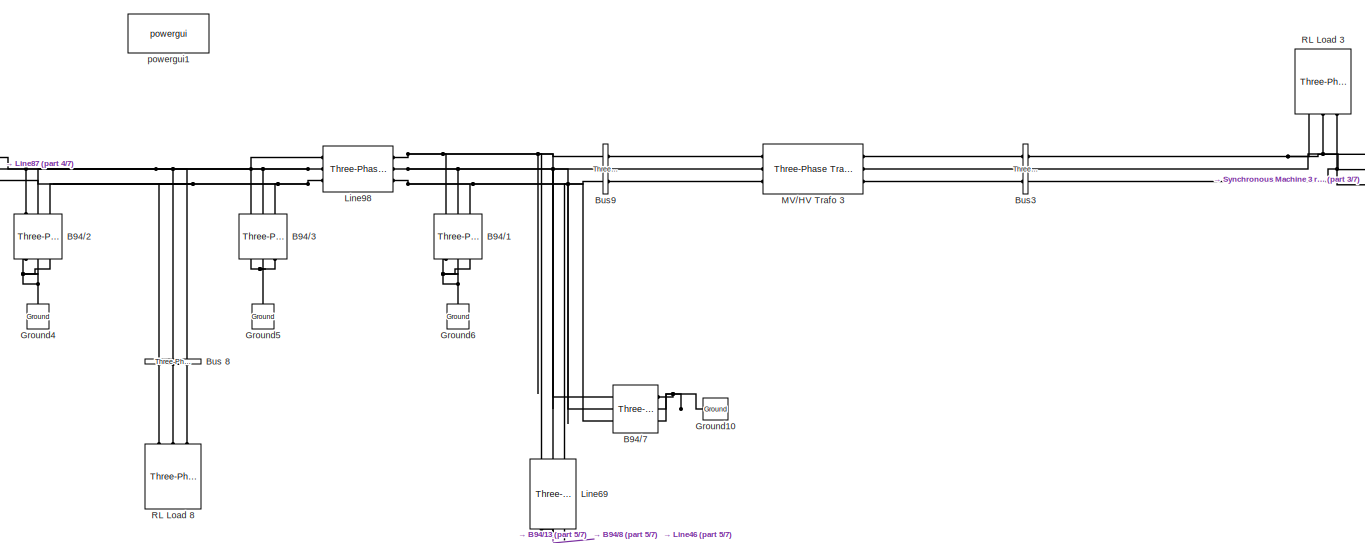
[diagram: root canvas - part 1/7, top center region]
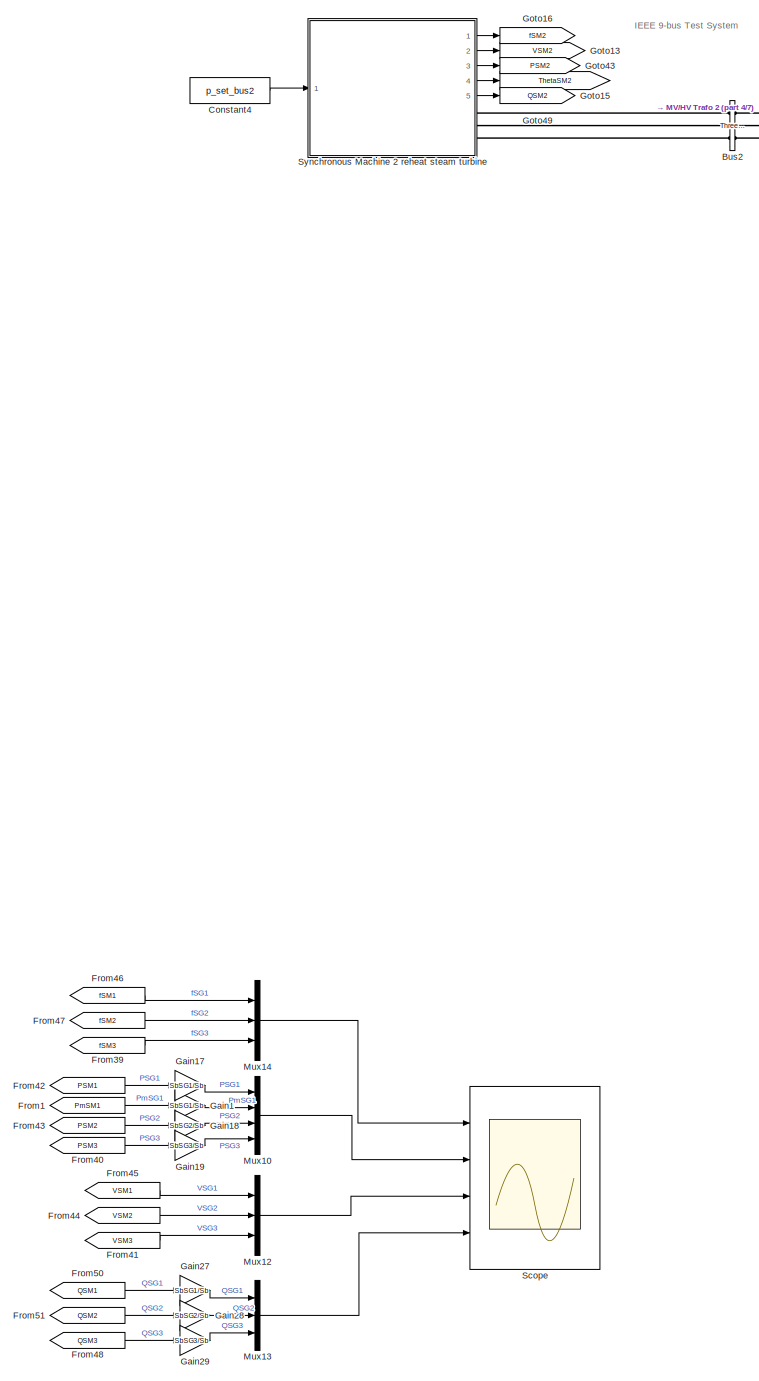
[diagram: root canvas - part 2/7, left side, full height]
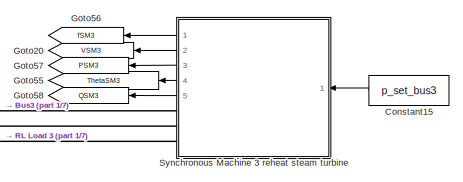
[diagram: root canvas - part 3/7, top right region]
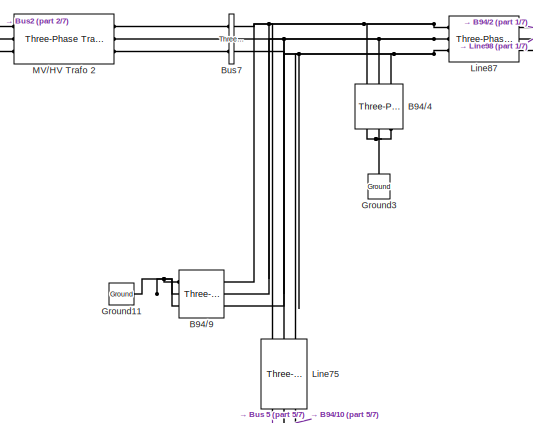
[diagram: root canvas - part 4/7, top center region]
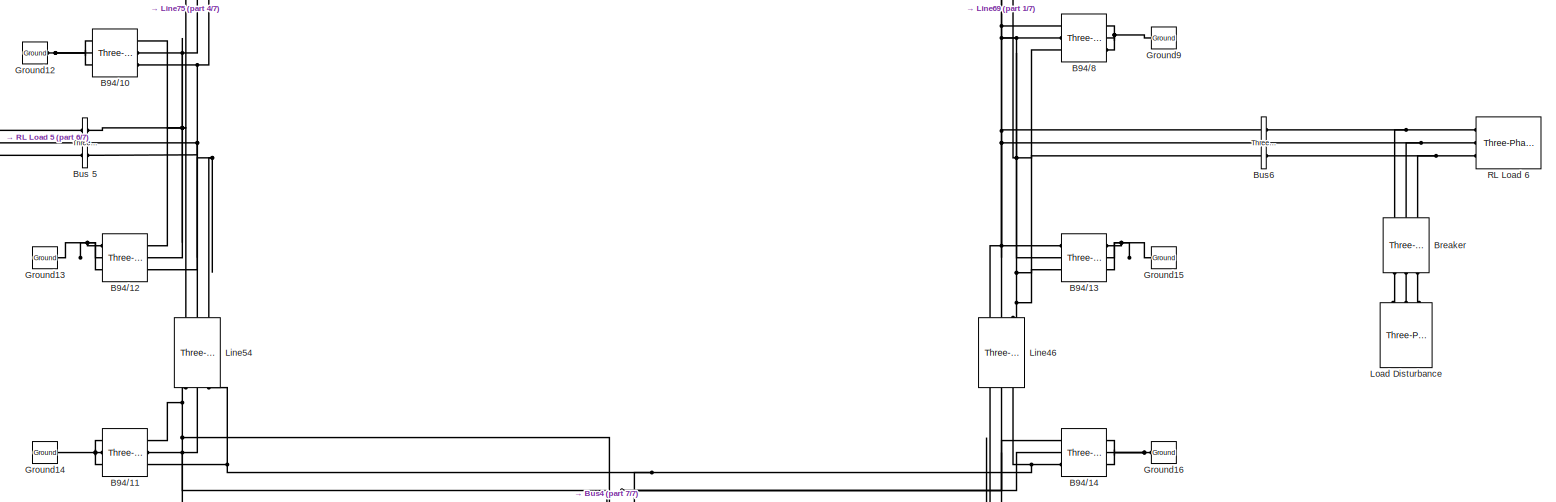
[diagram: root canvas - part 5/7, central region]
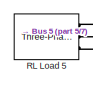
[diagram: root canvas - part 6/7, middle left region]
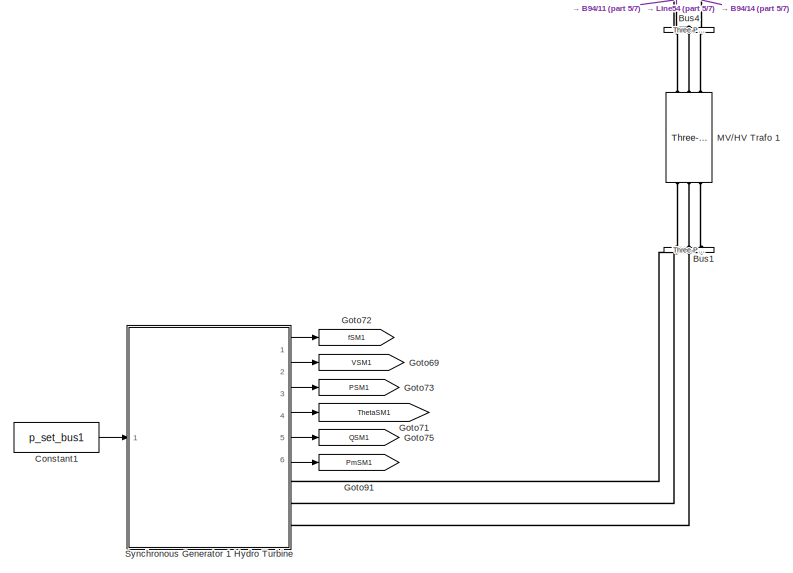
[diagram: root canvas - part 7/7, bottom center region]
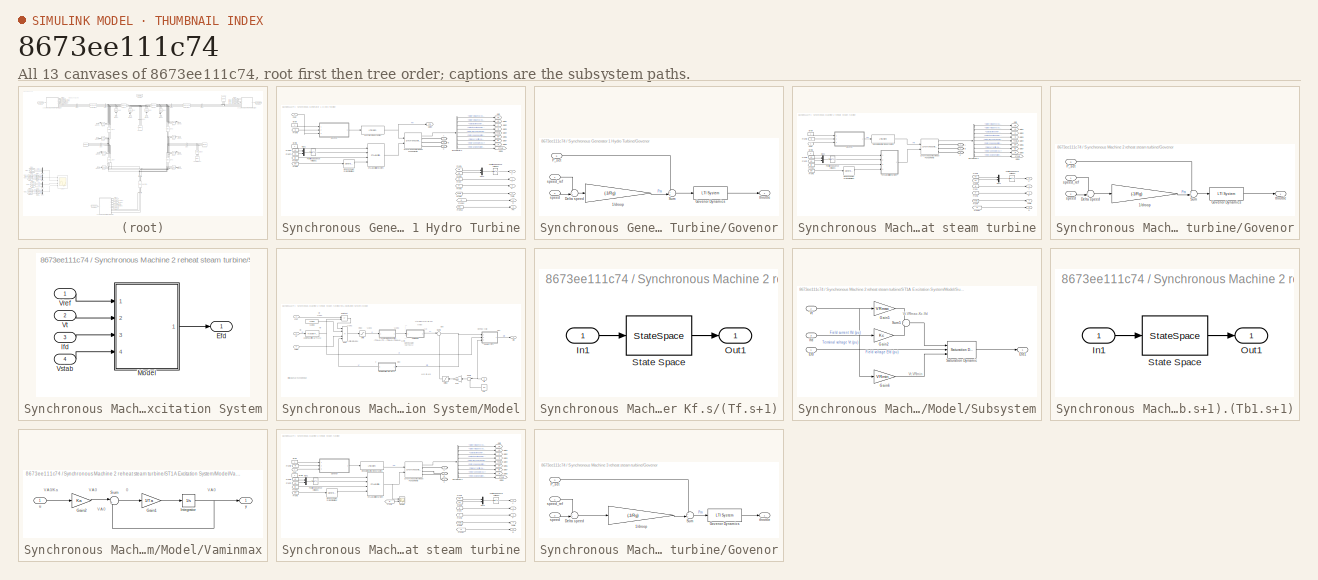
[diagram: thumbnail index - all 13 canvases of the model, root first then tree order]
MODEL slx_8673ee111c74
KIND model
CONFIG AbsTol = auto
CONFIG EnableMultiTasking = off
CONFIG FixedStep = auto
CONFIG MaxStep = 5.0E-5
CONFIG MinStep = auto
CONFIG RelTol = 1e-3
CONFIG SampleTimeConstraint = Unconstrained
CONFIG Solver = FixedStepAuto
CONFIG SolverName = FixedStepAuto
CONFIG StartTime = 0.0
CONFIG StopTime = Tend
BLOCK [Reference] B94//1  REF=powerlib/Elements/Three-Phase
Parallel RLC Branch
  AttributesFormatString = \n
  NameLocation = left
  Ports = [0, 0, 0, 0, 0, 3, 3]
  SourceBlock = powerlib/Elements/Three-Phase\nParallel RLC Branch
  SourceProductBaseCode = PS
  SourceType = Three-Phase Parallel RLC Branch
BLOCK [Reference] B94//10  REF=powerlib/Elements/Three-Phase
Parallel RLC Branch
  AttributesFormatString = \n
  Ports = [0, 0, 0, 0, 0, 3, 3]
  SourceBlock = powerlib/Elements/Three-Phase\nParallel RLC Branch
  SourceProductBaseCode = PS
  SourceType = Three-Phase Parallel RLC Branch
BLOCK [Reference] B94//11  REF=powerlib/Elements/Three-Phase
Parallel RLC Branch
  AttributesFormatString = \n
  Ports = [0, 0, 0, 0, 0, 3, 3]
  SourceBlock = powerlib/Elements/Three-Phase\nParallel RLC Branch
  SourceProductBaseCode = PS
  SourceType = Three-Phase Parallel RLC Branch
BLOCK [Reference] B94//12  REF=powerlib/Elements/Three-Phase
Parallel RLC Branch
  AttributesFormatString = \n
  Ports = [0, 0, 0, 0, 0, 3, 3]
  SourceBlock = powerlib/Elements/Three-Phase\nParallel RLC Branch
  SourceProductBaseCode = PS
  SourceType = Three-Phase Parallel RLC Branch
BLOCK [Reference] B94//13  REF=powerlib/Elements/Three-Phase
Parallel RLC Branch
  AttributesFormatString = \n
  Ports = [0, 0, 0, 0, 0, 3, 3]
  SourceBlock = powerlib/Elements/Three-Phase\nParallel RLC Branch
  SourceProductBaseCode = PS
  SourceType = Three-Phase Parallel RLC Branch
BLOCK [Reference] B94//14  REF=powerlib/Elements/Three-Phase
Parallel RLC Branch
  AttributesFormatString = \n
  Ports = [0, 0, 0, 0, 0, 3, 3]
  SourceBlock = powerlib/Elements/Three-Phase\nParallel RLC Branch
  SourceProductBaseCode = PS
  SourceType = Three-Phase Parallel RLC Branch
BLOCK [Reference] B94//2  REF=powerlib/Elements/Three-Phase
Parallel RLC Branch
  AttributesFormatString = \n
  NameLocation = left
  Ports = [0, 0, 0, 0, 0, 3, 3]
  SourceBlock = powerlib/Elements/Three-Phase\nParallel RLC Branch
  SourceProductBaseCode = PS
  SourceType = Three-Phase Parallel RLC Branch
BLOCK [Reference] B94//3  REF=powerlib/Elements/Three-Phase
Parallel RLC Branch
  AttributesFormatString = \n
  NameLocation = left
  Ports = [0, 0, 0, 0, 0, 3, 3]
  SourceBlock = powerlib/Elements/Three-Phase\nParallel RLC Branch
  SourceProductBaseCode = PS
  SourceType = Three-Phase Parallel RLC Branch
BLOCK [Reference] B94//4  REF=powerlib/Elements/Three-Phase
Parallel RLC Branch
  AttributesFormatString = \n
  NameLocation = left
  Ports = [0, 0, 0, 0, 0, 3, 3]
  SourceBlock = powerlib/Elements/Three-Phase\nParallel RLC Branch
  SourceProductBaseCode = PS
  SourceType = Three-Phase Parallel RLC Branch
BLOCK [Reference] B94//7  REF=powerlib/Elements/Three-Phase
Parallel RLC Branch
  AttributesFormatString = \n
  Ports = [0, 0, 0, 0, 0, 3, 3]
  SourceBlock = powerlib/Elements/Three-Phase\nParallel RLC Branch
  SourceProductBaseCode = PS
  SourceType = Three-Phase Parallel RLC Branch
BLOCK [Reference] B94//8  REF=powerlib/Elements/Three-Phase
Parallel RLC Branch
  AttributesFormatString = \n
  Ports = [0, 0, 0, 0, 0, 3, 3]
  SourceBlock = powerlib/Elements/Three-Phase\nParallel RLC Branch
  SourceProductBaseCode = PS
  SourceType = Three-Phase Parallel RLC Branch
BLOCK [Reference] B94//9  REF=powerlib/Elements/Three-Phase
Parallel RLC Branch
  AttributesFormatString = \n
  Ports = [0, 0, 0, 0, 0, 3, 3]
  SourceBlock = powerlib/Elements/Three-Phase\nParallel RLC Branch
  SourceProductBaseCode = PS
  SourceType = Three-Phase Parallel RLC Branch
BLOCK [Reference] Breaker  REF=powerlib/Elements/Three-Phase Breaker
  NameLocation = right
  Ports = [0, 0, 0, 0, 0, 3, 3]
  SourceBlock = powerlib/Elements/Three-Phase Breaker
  SourceProductBaseCode = PS
  SourceType = Three-Phase Breaker
BLOCK [Reference] Bus 5  REF=powerlib/Measurements/Three-Phase
V-I Measurement
  Ports = [0, 0, 0, 0, 0, 3, 3]
  SourceBlock = powerlib/Measurements/Three-Phase\nV-I Measurement
  SourceProductBaseCode = PS
  SourceType = Three-Phase VI Measurement
BLOCK [Reference] Bus 8  REF=powerlib/Measurements/Three-Phase
V-I Measurement
  NameLocation = left
  Ports = [0, 0, 0, 0, 0, 3, 3]
  SourceBlock = powerlib/Measurements/Three-Phase\nV-I Measurement
  SourceProductBaseCode = PS
  SourceType = Three-Phase VI Measurement
BLOCK [Reference] Bus1  REF=powerlib/Measurements/Three-Phase
V-I Measurement
  NameLocation = right
  Ports = [0, 0, 0, 0, 0, 3, 3]
  SourceBlock = powerlib/Measurements/Three-Phase\nV-I Measurement
  SourceProductBaseCode = PS
  SourceType = Three-Phase VI Measurement
BLOCK [Reference] Bus2  REF=powerlib/Measurements/Three-Phase
V-I Measurement
  Ports = [0, 0, 0, 0, 0, 3, 3]
  SourceBlock = powerlib/Measurements/Three-Phase\nV-I Measurement
  SourceProductBaseCode = PS
  SourceType = Three-Phase VI Measurement
BLOCK [Reference] Bus3  REF=powerlib/Measurements/Three-Phase
V-I Measurement
  Ports = [0, 0, 0, 0, 0, 3, 3]
  SourceBlock = powerlib/Measurements/Three-Phase\nV-I Measurement
  SourceProductBaseCode = PS
  SourceType = Three-Phase VI Measurement
BLOCK [Reference] Bus4  REF=powerlib/Measurements/Three-Phase
V-I Measurement
  NameLocation = right
  Ports = [0, 0, 0, 0, 0, 3, 3]
  SourceBlock = powerlib/Measurements/Three-Phase\nV-I Measurement
  SourceProductBaseCode = PS
  SourceType = Three-Phase VI Measurement
BLOCK [Reference] Bus6  REF=powerlib/Measurements/Three-Phase
V-I Measurement
  Ports = [0, 0, 0, 0, 0, 3, 3]
  SourceBlock = powerlib/Measurements/Three-Phase\nV-I Measurement
  SourceProductBaseCode = PS
  SourceType = Three-Phase VI Measurement
BLOCK [Reference] Bus7  REF=powerlib/Measurements/Three-Phase
V-I Measurement
  Ports = [0, 0, 0, 0, 0, 3, 3]
  SourceBlock = powerlib/Measurements/Three-Phase\nV-I Measurement
  SourceProductBaseCode = PS
  SourceType = Three-Phase VI Measurement
BLOCK [Reference] Bus9  REF=powerlib/Measurements/Three-Phase
V-I Measurement
  Ports = [0, 0, 0, 0, 0, 3, 3]
  SourceBlock = powerlib/Measurements/Three-Phase\nV-I Measurement
  SourceProductBaseCode = PS
  SourceType = Three-Phase VI Measurement
BLOCK [Constant] Constant1
  Value = p_set_bus1
BLOCK [Constant] Constant15
  Value = p_set_bus3
BLOCK [Constant] Constant4
  Value = p_set_bus2
BLOCK [From] From1
  GotoTag = PmSM1
  TagVisibility = global
BLOCK [From] From39
  GotoTag = fSM3
  TagVisibility = global
BLOCK [From] From40
  GotoTag = PSM3
  TagVisibility = global
BLOCK [From] From41
  GotoTag = VSM3
BLOCK [From] From42
  GotoTag = PSM1
  TagVisibility = global
BLOCK [From] From43
  GotoTag = PSM2
  TagVisibility = global
BLOCK [From] From44
  GotoTag = VSM2
BLOCK [From] From45
  GotoTag = VSM1
BLOCK [From] From46
  GotoTag = fSM1
  TagVisibility = global
BLOCK [From] From47
  GotoTag = fSM2
  TagVisibility = global
BLOCK [From] From48
  GotoTag = QSM3
  TagVisibility = global
BLOCK [From] From50
  GotoTag = QSM1
  TagVisibility = global
BLOCK [From] From51
  GotoTag = QSM2
  TagVisibility = global
BLOCK [Gain] Gain1
  Gain = SbSG1/Sb
BLOCK [Gain] Gain17
  Gain = SbSG1/Sb
BLOCK [Gain] Gain18
  Gain = SbSG2/Sb
BLOCK [Gain] Gain19
  Gain = SbSG3/Sb
BLOCK [Gain] Gain27
  Gain = SbSG1/Sb
BLOCK [Gain] Gain28
  Gain = SbSG2/Sb
BLOCK [Gain] Gain29
  Gain = SbSG3/Sb
BLOCK [Goto] Goto13
  GotoTag = VSM2
BLOCK [Goto] Goto15
  GotoTag = ThetaSM2
  NameLocation = top
BLOCK [Goto] Goto16
  GotoTag = fSM2
  TagVisibility = global
BLOCK [Goto] Goto20
  GotoTag = VSM3
BLOCK [Goto] Goto43
  GotoTag = PSM2
  TagVisibility = global
BLOCK [Goto] Goto49
  GotoTag = QSM2
  TagVisibility = global
BLOCK [Goto] Goto55
  GotoTag = ThetaSM3
  NameLocation = top
BLOCK [Goto] Goto56
  GotoTag = fSM3
  TagVisibility = global
BLOCK [Goto] Goto57
  GotoTag = PSM3
  TagVisibility = global
BLOCK [Goto] Goto58
  GotoTag = QSM3
  TagVisibility = global
BLOCK [Goto] Goto69
  GotoTag = VSM1
BLOCK [Goto] Goto71
  GotoTag = ThetaSM1
  NameLocation = top
BLOCK [Goto] Goto72
  GotoTag = fSM1
  TagVisibility = global
BLOCK [Goto] Goto73
  GotoTag = PSM1
  TagVisibility = global
BLOCK [Goto] Goto75
  GotoTag = QSM1
  TagVisibility = global
BLOCK [Goto] Goto91
  GotoTag = PmSM1
  TagVisibility = global
BLOCK [Reference] Ground10  REF=powerlib/Elements/Ground
  NameLocation = top
  Ports = [0, 0, 0, 0, 0, 1]
  SourceBlock = powerlib/Elements/Ground
  SourceProductBaseCode = PS
  SourceType = Ground
BLOCK [Reference] Ground11  REF=powerlib/Elements/Ground
  NameLocation = top
  Ports = [0, 0, 0, 0, 0, 1]
  SourceBlock = powerlib/Elements/Ground
  SourceProductBaseCode = PS
  SourceType = Ground
BLOCK [Reference] Ground12  REF=powerlib/Elements/Ground
  NameLocation = top
  Ports = [0, 0, 0, 0, 0, 1]
  SourceBlock = powerlib/Elements/Ground
  SourceProductBaseCode = PS
  SourceType = Ground
BLOCK [Reference] Ground13  REF=powerlib/Elements/Ground
  NameLocation = top
  Ports = [0, 0, 0, 0, 0, 1]
  SourceBlock = powerlib/Elements/Ground
  SourceProductBaseCode = PS
  SourceType = Ground
BLOCK [Reference] Ground14  REF=powerlib/Elements/Ground
  NameLocation = top
  Ports = [0, 0, 0, 0, 0, 1]
  SourceBlock = powerlib/Elements/Ground
  SourceProductBaseCode = PS
  SourceType = Ground
BLOCK [Reference] Ground15  REF=powerlib/Elements/Ground
  NameLocation = top
  Ports = [0, 0, 0, 0, 0, 1]
  SourceBlock = powerlib/Elements/Ground
  SourceProductBaseCode = PS
  SourceType = Ground
BLOCK [Reference] Ground16  REF=powerlib/Elements/Ground
  NameLocation = top
  Ports = [0, 0, 0, 0, 0, 1]
  SourceBlock = powerlib/Elements/Ground
  SourceProductBaseCode = PS
  SourceType = Ground
BLOCK [Reference] Ground3  REF=powerlib/Elements/Ground
  NameLocation = right
  Ports = [0, 0, 0, 0, 0, 1]
  SourceBlock = powerlib/Elements/Ground
  SourceProductBaseCode = PS
  SourceType = Ground
BLOCK [Reference] Ground4  REF=powerlib/Elements/Ground
  NameLocation = right
  Ports = [0, 0, 0, 0, 0, 1]
  SourceBlock = powerlib/Elements/Ground
  SourceProductBaseCode = PS
  SourceType = Ground
BLOCK [Reference] Ground5  REF=powerlib/Elements/Ground
  NameLocation = right
  Ports = [0, 0, 0, 0, 0, 1]
  SourceBlock = powerlib/Elements/Ground
  SourceProductBaseCode = PS
  SourceType = Ground
BLOCK [Reference] Ground6  REF=powerlib/Elements/Ground
  NameLocation = right
  Ports = [0, 0, 0, 0, 0, 1]
  SourceBlock = powerlib/Elements/Ground
  SourceProductBaseCode = PS
  SourceType = Ground
BLOCK [Reference] Ground9  REF=powerlib/Elements/Ground
  NameLocation = top
  Ports = [0, 0, 0, 0, 0, 1]
  SourceBlock = powerlib/Elements/Ground
  SourceProductBaseCode = PS
  SourceType = Ground
BLOCK [Reference] Line46  REF=powerlib/Elements/Three-Phase
Series RLC Branch
  AttributesFormatString = \n
  NameLocation = left
  Ports = [0, 0, 0, 0, 0, 3, 3]
  SourceBlock = powerlib/Elements/Three-Phase\nSeries RLC Branch
  SourceProductBaseCode = PS
  SourceType = Three-Phase Series RLC Branch
BLOCK [Reference] Line54  REF=powerlib/Elements/Three-Phase
Series RLC Branch
  AttributesFormatString = \n
  NameLocation = right
  Ports = [0, 0, 0, 0, 0, 3, 3]
  SourceBlock = powerlib/Elements/Three-Phase\nSeries RLC Branch
  SourceProductBaseCode = PS
  SourceType = Three-Phase Series RLC Branch
BLOCK [Reference] Line69  REF=powerlib/Elements/Three-Phase
Series RLC Branch
  AttributesFormatString = \n
  NameLocation = left
  Ports = [0, 0, 0, 0, 0, 3, 3]
  SourceBlock = powerlib/Elements/Three-Phase\nSeries RLC Branch
  SourceProductBaseCode = PS
  SourceType = Three-Phase Series RLC Branch
BLOCK [Reference] Line75  REF=powerlib/Elements/Three-Phase
Series RLC Branch
  AttributesFormatString = \n
  NameLocation = right
  Ports = [0, 0, 0, 0, 0, 3, 3]
  SourceBlock = powerlib/Elements/Three-Phase\nSeries RLC Branch
  SourceProductBaseCode = PS
  SourceType = Three-Phase Series RLC Branch
BLOCK [Reference] Line87  REF=powerlib/Elements/Three-Phase
Series RLC Branch
  AttributesFormatString = \n
  Ports = [0, 0, 0, 0, 0, 3, 3]
  SourceBlock = powerlib/Elements/Three-Phase\nSeries RLC Branch
  SourceProductBaseCode = PS
  SourceType = Three-Phase Series RLC Branch
BLOCK [Reference] Line98  REF=powerlib/Elements/Three-Phase
Series RLC Branch
  AttributesFormatString = \n
  Ports = [0, 0, 0, 0, 0, 3, 3]
  SourceBlock = powerlib/Elements/Three-Phase\nSeries RLC Branch
  SourceProductBaseCode = PS
  SourceType = Three-Phase Series RLC Branch
BLOCK [Reference] Load Disturbance  REF=powerlib/Elements/Three-Phase
Parallel RLC Load
  AttributesFormatString = \n
  NameLocation = left
  Ports = [0, 0, 0, 0, 0, 3]
  SourceBlock = powerlib/Elements/Three-Phase\nParallel RLC Load
  SourceProductBaseCode = PS
  SourceType = Three-Phase Parallel RLC Load
BLOCK [Reference] MV//HV Trafo 1   REF=powerlib/Elements/Three-Phase
Transformer
(Two Windings)
  AttributesFormatString = \n
  NameLocation = right
  Ports = [0, 0, 0, 0, 0, 3, 3]
  SourceBlock = powerlib/Elements/Three-Phase\nTransformer\n(Two Windings)
  SourceProductBaseCode = PS
  SourceType = Three-Phase Transformer (Two Windings)
BLOCK [Reference] MV//HV Trafo 2   REF=powerlib/Elements/Three-Phase
Transformer
(Two Windings)
  AttributesFormatString = \n
  Ports = [0, 0, 0, 0, 0, 3, 3]
  SourceBlock = powerlib/Elements/Three-Phase\nTransformer\n(Two Windings)
  SourceProductBaseCode = PS
  SourceType = Three-Phase Transformer (Two Windings)
BLOCK [Reference] MV//HV Trafo 3   REF=powerlib/Elements/Three-Phase
Transformer
(Two Windings)
  AttributesFormatString = \n
  Ports = [0, 0, 0, 0, 0, 3, 3]
  SourceBlock = powerlib/Elements/Three-Phase\nTransformer\n(Two Windings)
  SourceProductBaseCode = PS
  SourceType = Three-Phase Transformer (Two Windings)
BLOCK [Mux] Mux10
  DisplayOption = bar
  Ports = [4, 1]
BLOCK [Mux] Mux12
  DisplayOption = bar
  Inputs = 3
  Ports = [3, 1]
BLOCK [Mux] Mux13
  DisplayOption = bar
  Inputs = 3
  Ports = [3, 1]
BLOCK [Mux] Mux14
  DisplayOption = bar
  Inputs = 3
  Ports = [3, 1]
BLOCK [Reference] RL Load 3  REF=powerlib/Elements/Three-Phase
Parallel RLC Load
  AttributesFormatString = \n
  NameLocation = left
  Ports = [0, 0, 0, 0, 0, 3]
  SourceBlock = powerlib/Elements/Three-Phase\nParallel RLC Load
  SourceProductBaseCode = PS
  SourceType = Three-Phase Parallel RLC Load
BLOCK [Reference] RL Load 5  REF=powerlib/Elements/Three-Phase
Parallel RLC Load
  AttributesFormatString = \n
  Ports = [0, 0, 0, 0, 0, 3]
  SourceBlock = powerlib/Elements/Three-Phase\nParallel RLC Load
  SourceProductBaseCode = PS
  SourceType = Three-Phase Parallel RLC Load
BLOCK [Reference] RL Load 6  REF=powerlib/Elements/Three-Phase
Parallel RLC Load
  AttributesFormatString = \n
  NameLocation = top
  Ports = [0, 0, 0, 0, 0, 3]
  SourceBlock = powerlib/Elements/Three-Phase\nParallel RLC Load
  SourceProductBaseCode = PS
  SourceType = Three-Phase Parallel RLC Load
BLOCK [Reference] RL Load 8   REF=powerlib/Elements/Three-Phase
Parallel RLC Load
  AttributesFormatString = \n
  NameLocation = right
  Ports = [0, 0, 0, 0, 0, 3]
  SourceBlock = powerlib/Elements/Three-Phase\nParallel RLC Load
  SourceProductBaseCode = PS
  SourceType = Three-Phase Parallel RLC Load
BLOCK [Scope] Scope
  Floating = off
  NumInputPorts = 4
  Ports = [4]
  ScopeSpecificationString = Simulink.scopes.TimeScopeBlockCfg('CurrentConfiguration', extmgr.ConfigurationSet(extmgr.Configuration('Core','General UI',true,'FigureColor',[1 1 1]),extmgr.Configuration('Core','Source UI',true),extmgr.Configuration('Sources','WiredSimulink',true,'DataLoggingVariableName','ScopeData1'),extmgr.Configuration('Visuals','Time Domain',true,'SerializedDisplays',{struct('MinYLimReal','0.99303','MaxYLim...<+3714ch>
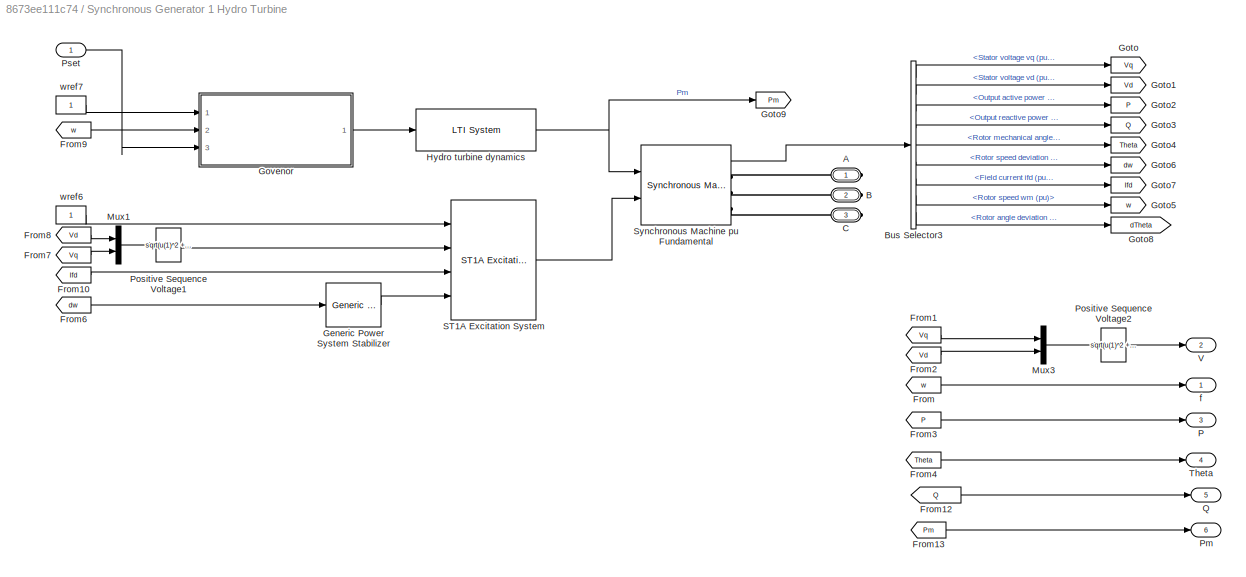
BLOCK [SubSystem] Synchronous Generator 1 Hydro Turbine
  Ports = [1, 6, 0, 0, 0, 0, 3]
  RequestExecContextInheritance = off
BLOCK [PMIOPort] Synchronous Generator 1 Hydro Turbine/A
  NameLocation = top
  Side = Right
BLOCK [PMIOPort] Synchronous Generator 1 Hydro Turbine/B
  NameLocation = top
  Port = 2
  Side = Right
BLOCK [BusSelector] Synchronous Generator 1 Hydro Turbine/Bus Selector3
  OutputSignals = dq0 components.Stator voltage  vq (pu),dq0 components.Stator voltage  vd (pu),Output active power   Peo (pu),Output reactive power  Qeo (pu),Mechanical.Rotor mechanical angle  theta (deg),Mechanical.Rotor speed deviation  dw (pu),dq0 components.Field current  ifd (pu),Mechanical.Rotor speed  wm (pu),Mechanical.Rotor angle deviation  d_theta (rad)  <repeated x3 — deduplicated; at blocks: Bus Selector3>
  Ports = [1, 9]
BLOCK [PMIOPort] Synchronous Generator 1 Hydro Turbine/C
  NameLocation = top
  Port = 3
  Side = Right
BLOCK [From] Synchronous Generator 1 Hydro Turbine/From
  GotoTag = w
BLOCK [From] Synchronous Generator 1 Hydro Turbine/From1
  GotoTag = Vq
BLOCK [From] Synchronous Generator 1 Hydro Turbine/From10
  GotoTag = Ifd
BLOCK [From] Synchronous Generator 1 Hydro Turbine/From12
  GotoTag = Q
BLOCK [From] Synchronous Generator 1 Hydro Turbine/From13
  GotoTag = Pm
BLOCK [From] Synchronous Generator 1 Hydro Turbine/From2
  GotoTag = Vd
BLOCK [From] Synchronous Generator 1 Hydro Turbine/From3
  GotoTag = P
BLOCK [From] Synchronous Generator 1 Hydro Turbine/From4
  GotoTag = Theta
BLOCK [From] Synchronous Generator 1 Hydro Turbine/From6
  GotoTag = dw
BLOCK [From] Synchronous Generator 1 Hydro Turbine/From7
  GotoTag = Vq
BLOCK [From] Synchronous Generator 1 Hydro Turbine/From8
  GotoTag = Vd
BLOCK [From] Synchronous Generator 1 Hydro Turbine/From9
  GotoTag = w
BLOCK [Reference] Synchronous Generator 1 Hydro Turbine/Generic Power System Stabilizer  REF=powerlib/Machines/Generic
Power System Stabilizer
  Ports = [1, 1]
  SourceBlock = powerlib/Machines/Generic\nPower System Stabilizer
  SourceProductBaseCode = PS
  SourceType = Generic Power System Stabilizer
BLOCK [Goto] Synchronous Generator 1 Hydro Turbine/Goto
  GotoTag = Vq
BLOCK [Goto] Synchronous Generator 1 Hydro Turbine/Goto1
  GotoTag = Vd
BLOCK [Goto] Synchronous Generator 1 Hydro Turbine/Goto2
  GotoTag = P
BLOCK [Goto] Synchronous Generator 1 Hydro Turbine/Goto3
  GotoTag = Q
BLOCK [Goto] Synchronous Generator 1 Hydro Turbine/Goto4
  GotoTag = Theta
BLOCK [Goto] Synchronous Generator 1 Hydro Turbine/Goto5
  GotoTag = w
BLOCK [Goto] Synchronous Generator 1 Hydro Turbine/Goto6
  GotoTag = dw
BLOCK [Goto] Synchronous Generator 1 Hydro Turbine/Goto7
  GotoTag = Ifd
BLOCK [Goto] Synchronous Generator 1 Hydro Turbine/Goto8
  GotoTag = dTheta
BLOCK [Goto] Synchronous Generator 1 Hydro Turbine/Goto9
  GotoTag = Pm
BLOCK [SubSystem] Synchronous Generator 1 Hydro Turbine/Govenor
  Ports = [3, 1]
  RequestExecContextInheritance = off
BLOCK [Gain] Synchronous Generator 1 Hydro Turbine/Govenor/1//droop
  Gain = (-1/Rg)
BLOCK [Sum] Synchronous Generator 1 Hydro Turbine/Govenor/Delta speed
  Inputs = -+|
  Ports = [2, 1]
BLOCK [Reference] Synchronous Generator 1 Hydro Turbine/Govenor/Govenor Dynamics  REF=cstblocks/LTI System
  Ports = [1, 1]
  SourceBlock = cstblocks/LTI System
  SourceProductBaseCode = CT
  SourceType = LTI Block
BLOCK [Inport] Synchronous Generator 1 Hydro Turbine/Govenor/P_set
  Port = 3
BLOCK [Sum] Synchronous Generator 1 Hydro Turbine/Govenor/Sum
  Inputs = ++|
  Ports = [2, 1]
BLOCK [Inport] Synchronous Generator 1 Hydro Turbine/Govenor/speed
  Port = 2
BLOCK [Inport] Synchronous Generator 1 Hydro Turbine/Govenor/speed_ref
BLOCK [Outport] Synchronous Generator 1 Hydro Turbine/Govenor/throttle
  VectorParamsAs1DForOutWhenUnconnected = off
BLOCK [Reference] Synchronous Generator 1 Hydro Turbine/Hydro turbine dynamics  REF=cstblocks/LTI System
  Ports = [1, 1]
  SourceBlock = cstblocks/LTI System
  SourceProductBaseCode = CT
  SourceType = LTI Block
BLOCK [Mux] Synchronous Generator 1 Hydro Turbine/Mux1
  DisplayOption = bar
  Inputs = 2
  Ports = [2, 1]
BLOCK [Mux] Synchronous Generator 1 Hydro Turbine/Mux3
  DisplayOption = bar
  Inputs = 2
  Ports = [2, 1]
BLOCK [Outport] Synchronous Generator 1 Hydro Turbine/P
  Port = 3
  VectorParamsAs1DForOutWhenUnconnected = off
BLOCK [Outport] Synchronous Generator 1 Hydro Turbine/Pm
  Port = 6
  VectorParamsAs1DForOutWhenUnconnected = off
BLOCK [Fcn] Synchronous Generator 1 Hydro Turbine/Positive Sequence Voltage1
  Expr = sqrt(u(1)^2 + u(2)^2)
BLOCK [Fcn] Synchronous Generator 1 Hydro Turbine/Positive Sequence Voltage2
  Expr = sqrt(u(1)^2 + u(2)^2)
BLOCK [Inport] Synchronous Generator 1 Hydro Turbine/Pset
BLOCK [Outport] Synchronous Generator 1 Hydro Turbine/Q
  Port = 5
  VectorParamsAs1DForOutWhenUnconnected = off
BLOCK [Reference] Synchronous Generator 1 Hydro Turbine/ST1A Excitation System  REF=sps_avr/ST1A
Excitation System
  Ports = [4, 1]
  SourceBlock = sps_avr/ST1A\nExcitation System
  SourceProductBaseCode = PS
  SourceType = ST1A Excitation System
BLOCK [Reference] Synchronous Generator 1 Hydro Turbine/Synchronous Machine pu Fundamental  REF=powerlib/Machines/Synchronous Machine
pu Fundamental
  Ports = [2, 1, 0, 0, 0, 0, 3]
  SourceBlock = powerlib/Machines/Synchronous Machine\npu Fundamental
  SourceProductBaseCode = PS
  SourceType = Synchronous Machine
BLOCK [Outport] Synchronous Generator 1 Hydro Turbine/Theta
  Port = 4
  VectorParamsAs1DForOutWhenUnconnected = off
BLOCK [Outport] Synchronous Generator 1 Hydro Turbine/V
  Port = 2
  VectorParamsAs1DForOutWhenUnconnected = off
BLOCK [Outport] Synchronous Generator 1 Hydro Turbine/f
  VectorParamsAs1DForOutWhenUnconnected = off
BLOCK [Constant] Synchronous Generator 1 Hydro Turbine/wref6
  NameLocation = top
BLOCK [Constant] Synchronous Generator 1 Hydro Turbine/wref7
  NameLocation = top
BLOCK [SubSystem] Synchronous Machine 2 reheat steam turbine
  Ports = [1, 5, 0, 0, 0, 0, 3]
  RequestExecContextInheritance = off
BLOCK [PMIOPort] Synchronous Machine 2 reheat steam turbine/A
  NameLocation = top
  Side = Right
BLOCK [PMIOPort] Synchronous Machine 2 reheat steam turbine/B
  NameLocation = top
  Port = 2
  Side = Right
BLOCK [BusSelector] Synchronous Machine 2 reheat steam turbine/Bus Selector3
  Ports = [1, 9]
BLOCK [PMIOPort] Synchronous Machine 2 reheat steam turbine/C
  NameLocation = top
  Port = 3
  Side = Right
BLOCK [From] Synchronous Machine 2 reheat steam turbine/From
  GotoTag = w
BLOCK [From] Synchronous Machine 2 reheat steam turbine/From1
  GotoTag = Vq
BLOCK [From] Synchronous Machine 2 reheat steam turbine/From10
  GotoTag = Ifd
BLOCK [From] Synchronous Machine 2 reheat steam turbine/From12
  GotoTag = Q
BLOCK [From] Synchronous Machine 2 reheat steam turbine/From2
  GotoTag = Vd
BLOCK [From] Synchronous Machine 2 reheat steam turbine/From3
  GotoTag = P
BLOCK [From] Synchronous Machine 2 reheat steam turbine/From4
  GotoTag = Theta
BLOCK [From] Synchronous Machine 2 reheat steam turbine/From6
  GotoTag = dw
BLOCK [From] Synchronous Machine 2 reheat steam turbine/From7
  GotoTag = Vq
BLOCK [From] Synchronous Machine 2 reheat steam turbine/From8
  GotoTag = Vd
BLOCK [From] Synchronous Machine 2 reheat steam turbine/From9
  GotoTag = w
BLOCK [Reference] Synchronous Machine 2 reheat steam turbine/Generic Power System Stabilizer  REF=powerlib/Machines/Generic
Power System Stabilizer
  Ports = [1, 1]
  SourceBlock = powerlib/Machines/Generic\nPower System Stabilizer
  SourceProductBaseCode = PS
  SourceType = Generic Power System Stabilizer
BLOCK [Goto] Synchronous Machine 2 reheat steam turbine/Goto
  GotoTag = Vq
BLOCK [Goto] Synchronous Machine 2 reheat steam turbine/Goto1
  GotoTag = Vd
BLOCK [Goto] Synchronous Machine 2 reheat steam turbine/Goto2
  GotoTag = P
BLOCK [Goto] Synchronous Machine 2 reheat steam turbine/Goto3
  GotoTag = Q
BLOCK [Goto] Synchronous Machine 2 reheat steam turbine/Goto4
  GotoTag = Theta
BLOCK [Goto] Synchronous Machine 2 reheat steam turbine/Goto5
  GotoTag = w
BLOCK [Goto] Synchronous Machine 2 reheat steam turbine/Goto6
  GotoTag = dw
BLOCK [Goto] Synchronous Machine 2 reheat steam turbine/Goto7
  GotoTag = Ifd
BLOCK [Goto] Synchronous Machine 2 reheat steam turbine/Goto8
  GotoTag = dTheta
BLOCK [SubSystem] Synchronous Machine 2 reheat steam turbine/Govenor
  Ports = [3, 1]
  RequestExecContextInheritance = off
BLOCK [Gain] Synchronous Machine 2 reheat steam turbine/Govenor/1//droop
  Gain = (-1/Rg)
BLOCK [Sum] Synchronous Machine 2 reheat steam turbine/Govenor/Delta speed
  Inputs = -+|
  Ports = [2, 1]
BLOCK [Reference] Synchronous Machine 2 reheat steam turbine/Govenor/Govenor Dynamics  REF=cstblocks/LTI System
  Ports = [1, 1]
  SourceBlock = cstblocks/LTI System
  SourceProductBaseCode = CT
  SourceType = LTI Block
BLOCK [Inport] Synchronous Machine 2 reheat steam turbine/Govenor/P_set
  Port = 3
BLOCK [Sum] Synchronous Machine 2 reheat steam turbine/Govenor/Sum
  Inputs = ++|
  Ports = [2, 1]
BLOCK [Inport] Synchronous Machine 2 reheat steam turbine/Govenor/speed
  Port = 2
BLOCK [Inport] Synchronous Machine 2 reheat steam turbine/Govenor/speed_ref
BLOCK [Outport] Synchronous Machine 2 reheat steam turbine/Govenor/throttle
  VectorParamsAs1DForOutWhenUnconnected = off
BLOCK [Mux] Synchronous Machine 2 reheat steam turbine/Mux1
  DisplayOption = bar
  Inputs = 2
  Ports = [2, 1]
BLOCK [Mux] Synchronous Machine 2 reheat steam turbine/Mux3
  DisplayOption = bar
  Inputs = 2
  Ports = [2, 1]
BLOCK [Outport] Synchronous Machine 2 reheat steam turbine/P
  Port = 3
  VectorParamsAs1DForOutWhenUnconnected = off
BLOCK [Fcn] Synchronous Machine 2 reheat steam turbine/Positive Sequence Voltage1
  Expr = sqrt(u(1)^2 + u(2)^2)
BLOCK [Fcn] Synchronous Machine 2 reheat steam turbine/Positive Sequence Voltage2
  Expr = sqrt(u(1)^2 + u(2)^2)
BLOCK [Inport] Synchronous Machine 2 reheat steam turbine/Pset
BLOCK [Outport] Synchronous Machine 2 reheat steam turbine/Q
  Port = 5
  VectorParamsAs1DForOutWhenUnconnected = off
BLOCK [Reference] Synchronous Machine 2 reheat steam turbine/Reheat steam turbine dynamics  REF=cstblocks/LTI System
  Ports = [1, 1]
  SourceBlock = cstblocks/LTI System
  SourceProductBaseCode = CT
  SourceType = LTI Block
BLOCK [SubSystem] Synchronous Machine 2 reheat steam turbine/ST1A Excitation System
  AncestorBlock = sps_avr/ST1A\nExcitation System
  CloseFcn = sps_rtmsupport('CloseFcn', gcbh);
  CopyFcn = sps_rtmsupport('CopyFcn', gcbh);
  DeleteFcn = sps_rtmsupport('DeleteFcn', gcbh);
  DialogController = POWERSYS.PowerSysDialog
  LoadFcn = sps_rtmsupport('LoadFcn', gcbh);
  ModelCloseFcn = sps_rtmsupport('ModelCloseFcn', gcbh);
  NameChangeFcn = sps_rtmsupport('NameChangeFcn', gcbh);
  OpenFcn = sps_rtmsupport('OpenFcn', gcbh, []);
  Ports = [4, 1]
  PostSaveFcn = sps_rtmsupport('PostSaveFcn', gcbh);
  PreCopyFcn = sps_rtmsupport('PreCopyFcn', gcbh);
  PreDeleteFcn = sps_rtmsupport('PreDeleteFcn', gcbh);
  PreSaveFcn = sps_rtmsupport('PreSaveFcn', gcbh);
  RequestExecContextInheritance = off
  StartFcn = sps_rtmsupport('StartFcn', gcbh);
  StopFcn = sps_rtmsupport('StopFcn', gcbh);
  UndoDeleteFcn = sps_rtmsupport('UndoDeleteFcn', gcbh);
BLOCK [Outport] Synchronous Machine 2 reheat steam turbine/ST1A Excitation System/Efd
  VectorParamsAs1DForOutWhenUnconnected = off
BLOCK [Inport] Synchronous Machine 2 reheat steam turbine/ST1A Excitation System/Ifd
  Port = 3
BLOCK [SubSystem] Synchronous Machine 2 reheat steam turbine/ST1A Excitation System/Model
  AncestorBlock = spsST1AModel/Continuous
  Ports = [4, 1]
  RequestExecContextInheritance = off
BLOCK [SubSystem] Synchronous Machine 2 reheat steam turbine/ST1A Excitation System/Model/Damping Filter Kf.s//(Tf.s+1)
  Ports = [1, 1]
  RequestExecContextInheritance = off
BLOCK [Inport] Synchronous Machine 2 reheat steam turbine/ST1A Excitation System/Model/Damping Filter Kf.s//(Tf.s+1)/In1
BLOCK [Outport] Synchronous Machine 2 reheat steam turbine/ST1A Excitation System/Model/Damping Filter Kf.s//(Tf.s+1)/Out1
  InitialOutput = 0
BLOCK [StateSpace] Synchronous Machine 2 reheat steam turbine/ST1A Excitation System/Model/Damping Filter Kf.s//(Tf.s+1)/State Space
  A = A
  B = B
  C = C
  D = Dd
  InitialCondition = X0
  Ports = [1, 1]
BLOCK [Outport] Synchronous Machine 2 reheat steam turbine/ST1A Excitation System/Model/Efd
BLOCK [Constant] Synchronous Machine 2 reheat steam turbine/ST1A Excitation System/Model/ILR
  Value = ILR
BLOCK [Inport] Synchronous Machine 2 reheat steam turbine/ST1A Excitation System/Model/Ifd
  Port = 3
BLOCK [Gain] Synchronous Machine 2 reheat steam turbine/ST1A Excitation System/Model/KLR
  Gain = KLR
  OutDataTypeStr = Inherit: Same as input
  ParamDataTypeStr = Inherit: Same as input
  SaturateOnIntegerOverflow = on
BLOCK [Reference] Synchronous Machine 2 reheat steam turbine/ST1A Excitation System/Model/Low Pass Filter 1//(Tr.s+1)  REF=simulink_extras/Additional
Linear/Transfer Fcn
(with initial outputs)
  Ports = [1, 1]
  SourceBlock = simulink_extras/Additional\nLinear/Transfer Fcn\n(with initial outputs)
  SourceProductBaseCode = SL
  SourceType = Transfer Function with Initial Outputs
BLOCK [SubSystem] Synchronous Machine 2 reheat steam turbine/ST1A Excitation System/Model/Subsystem
  Ports = [3, 1]
  RequestExecContextInheritance = off
BLOCK [Inport] Synchronous Machine 2 reheat steam turbine/ST1A Excitation System/Model/Subsystem/Efd
BLOCK [Outport] Synchronous Machine 2 reheat steam turbine/ST1A Excitation System/Model/Subsystem/Efd1
BLOCK [Gain] Synchronous Machine 2 reheat steam turbine/ST1A Excitation System/Model/Subsystem/Gain2
  Gain = Kc
  NameLocation = top
  OutDataTypeStr = Inherit: Same as input
  ParamDataTypeStr = Inherit: Same as input
  SaturateOnIntegerOverflow = on
BLOCK [Gain] Synchronous Machine 2 reheat steam turbine/ST1A Excitation System/Model/Subsystem/Gain5
  Gain = VRmax
  OutDataTypeStr = Inherit: Same as input
  ParamDataTypeStr = Inherit: Same as input
  SaturateOnIntegerOverflow = on
BLOCK [Gain] Synchronous Machine 2 reheat steam turbine/ST1A Excitation System/Model/Subsystem/Gain6
  Gain = VRmin
  OutDataTypeStr = Inherit: Same as input
  ParamDataTypeStr = Inherit: Same as input
  SaturateOnIntegerOverflow = on
BLOCK [Inport] Synchronous Machine 2 reheat steam turbine/ST1A Excitation System/Model/Subsystem/Ifd
  Port = 3
BLOCK [Reference] Synchronous Machine 2 reheat steam turbine/ST1A Excitation System/Model/Subsystem/Saturation Dynamic  REF=simulink/Discontinuities/Saturation
Dynamic
  Ports = [3, 1]
  SourceBlock = simulink/Discontinuities/Saturation\nDynamic
  SourceProductBaseCode = SL
  SourceType = Saturation Dynamic
BLOCK [Sum] Synchronous Machine 2 reheat steam turbine/ST1A Excitation System/Model/Subsystem/Sum5
  InputSameDT = on
  Inputs = +-
  OutDataTypeStr = Inherit: Same as first input
  Ports = [2, 1]
  SaturateOnIntegerOverflow = on
BLOCK [Inport] Synchronous Machine 2 reheat steam turbine/ST1A Excitation System/Model/Subsystem/Vt
  Port = 2
BLOCK [Sum] Synchronous Machine 2 reheat steam turbine/ST1A Excitation System/Model/Subtract
  IconShape = rectangular
  Inputs = +-
  Ports = [2, 1]
BLOCK [Sum] Synchronous Machine 2 reheat steam turbine/ST1A Excitation System/Model/Sum
  IconShape = rectangular
  InputSameDT = on
  Inputs = ++-+-
  OutDataTypeStr = Inherit: Same as first input
  Ports = [5, 1]
  SaturateOnIntegerOverflow = on
BLOCK [Sum] Synchronous Machine 2 reheat steam turbine/ST1A Excitation System/Model/Sum1
  InputSameDT = on
  Inputs = |+-
  NameLocation = top
  OutDataTypeStr = Inherit: Same as first input
  Ports = [2, 1]
  SaturateOnIntegerOverflow = on
BLOCK [Sum] Synchronous Machine 2 reheat steam turbine/ST1A Excitation System/Model/Sum2
  InputSameDT = on
  Inputs = |+-
  OutDataTypeStr = Inherit: Same as first input
  Ports = [2, 1]
  SaturateOnIntegerOverflow = on
BLOCK [SubSystem] Synchronous Machine 2 reheat steam turbine/ST1A Excitation System/Model/Transient Gain Reduction (Tc.s+1).(Tc1.s+1) ----------------------- (Tb.s+1).(Tb1.s+1)
  Ports = [1, 1]
  RequestExecContextInheritance = off
BLOCK [Inport] Synchronous Machine 2 reheat steam turbine/ST1A Excitation System/Model/Transient Gain Reduction (Tc.s+1).(Tc1.s+1) ----------------------- (Tb.s+1).(Tb1.s+1)/In1
BLOCK [Outport] Synchronous Machine 2 reheat steam turbine/ST1A Excitation System/Model/Transient Gain Reduction (Tc.s+1).(Tc1.s+1) ----------------------- (Tb.s+1).(Tb1.s+1)/Out1
  InitialOutput = 0
BLOCK [StateSpace] Synchronous Machine 2 reheat steam turbine/ST1A Excitation System/Model/Transient Gain Reduction (Tc.s+1).(Tc1.s+1) ----------------------- (Tb.s+1).(Tb1.s+1)/State Space
  A = A
  B = B
  C = C
  D = Dd
  InitialCondition = X0
  Ports = [1, 1]
BLOCK [Constant] Synchronous Machine 2 reheat steam turbine/ST1A Excitation System/Model/VA0//Ka
  Value = VA0/Ka
BLOCK [Saturate] Synchronous Machine 2 reheat steam turbine/ST1A Excitation System/Model/VImin
  LowerLimit = VImin
  UpperLimit = VImax
BLOCK [Saturate] Synchronous Machine 2 reheat steam turbine/ST1A Excitation System/Model/VImin2
  LowerLimit = 0
  UpperLimit = inf
BLOCK [SubSystem] Synchronous Machine 2 reheat steam turbine/ST1A Excitation System/Model/Vaminmax
  Ports = [1, 1]
  RequestExecContextInheritance = off
BLOCK [Gain] Synchronous Machine 2 reheat steam turbine/ST1A Excitation System/Model/Vaminmax/Gain1
  Gain = 1/Ta
  OutDataTypeStr = Inherit: Same as input
  ParamDataTypeStr = Inherit: Same as input
  SaturateOnIntegerOverflow = on
BLOCK [Gain] Synchronous Machine 2 reheat steam turbine/ST1A Excitation System/Model/Vaminmax/Gain2
  Gain = Ka
  OutDataTypeStr = Inherit: Same as input
  ParamDataTypeStr = Inherit: Same as input
  SaturateOnIntegerOverflow = on
BLOCK [Integrator] Synchronous Machine 2 reheat steam turbine/ST1A Excitation System/Model/Vaminmax/Integrator
  InitialCondition = VA0
  LimitOutput = on
  LowerSaturationLimit = VAmin
  Ports = [1, 1]
  UpperSaturationLimit = VAmax
BLOCK [Sum] Synchronous Machine 2 reheat steam turbine/ST1A Excitation System/Model/Vaminmax/Sum
  InputSameDT = on
  Inputs = |+-
  OutDataTypeStr = Inherit: Same as first input
  Ports = [2, 1]
  SaturateOnIntegerOverflow = on
BLOCK [Inport] Synchronous Machine 2 reheat steam turbine/ST1A Excitation System/Model/Vaminmax/u
BLOCK [Outport] Synchronous Machine 2 reheat steam turbine/ST1A Excitation System/Model/Vaminmax/y
BLOCK [Inport] Synchronous Machine 2 reheat steam turbine/ST1A Excitation System/Model/Vref
BLOCK [Inport] Synchronous Machine 2 reheat steam turbine/ST1A Excitation System/Model/Vstab
  Port = 4
BLOCK [Inport] Synchronous Machine 2 reheat steam turbine/ST1A Excitation System/Model/Vt
  Port = 2
BLOCK [Inport] Synchronous Machine 2 reheat steam turbine/ST1A Excitation System/Vref
BLOCK [Inport] Synchronous Machine 2 reheat steam turbine/ST1A Excitation System/Vstab
  Port = 4
BLOCK [Inport] Synchronous Machine 2 reheat steam turbine/ST1A Excitation System/Vt
  Port = 2
BLOCK [Reference] Synchronous Machine 2 reheat steam turbine/Synchronous Machine pu Fundamental  REF=powerlib/Machines/Synchronous Machine
pu Fundamental
  Ports = [2, 1, 0, 0, 0, 0, 3]
  SourceBlock = powerlib/Machines/Synchronous Machine\npu Fundamental
  SourceProductBaseCode = PS
  SourceType = Synchronous Machine
BLOCK [Outport] Synchronous Machine 2 reheat steam turbine/Theta
  Port = 4
  VectorParamsAs1DForOutWhenUnconnected = off
BLOCK [Outport] Synchronous Machine 2 reheat steam turbine/V
  Port = 2
  VectorParamsAs1DForOutWhenUnconnected = off
BLOCK [Outport] Synchronous Machine 2 reheat steam turbine/f
  VectorParamsAs1DForOutWhenUnconnected = off
BLOCK [Constant] Synchronous Machine 2 reheat steam turbine/wref6
  NameLocation = top
BLOCK [Constant] Synchronous Machine 2 reheat steam turbine/wref7
  NameLocation = top
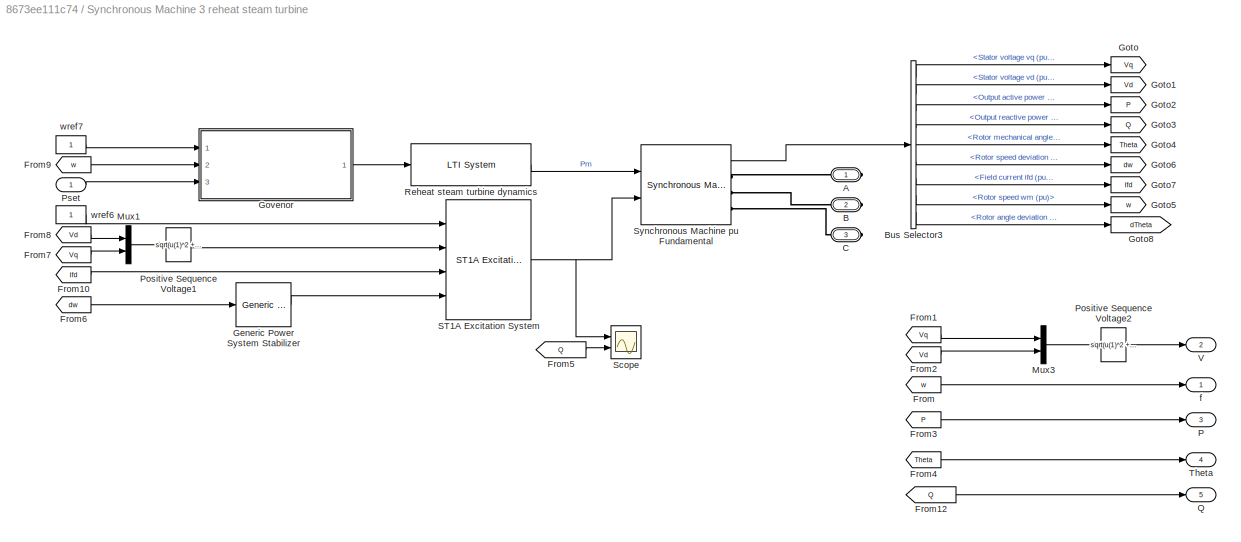
BLOCK [SubSystem] Synchronous Machine 3 reheat steam turbine
  Ports = [1, 5, 0, 0, 0, 0, 3]
  RequestExecContextInheritance = off
BLOCK [PMIOPort] Synchronous Machine 3 reheat steam turbine/A
  NameLocation = top
  Side = Right
BLOCK [PMIOPort] Synchronous Machine 3 reheat steam turbine/B
  NameLocation = top
  Port = 2
  Side = Right
BLOCK [BusSelector] Synchronous Machine 3 reheat steam turbine/Bus Selector3
  Ports = [1, 9]
BLOCK [PMIOPort] Synchronous Machine 3 reheat steam turbine/C
  NameLocation = top
  Port = 3
  Side = Right
BLOCK [From] Synchronous Machine 3 reheat steam turbine/From
  GotoTag = w
BLOCK [From] Synchronous Machine 3 reheat steam turbine/From1
  GotoTag = Vq
BLOCK [From] Synchronous Machine 3 reheat steam turbine/From10
  GotoTag = Ifd
BLOCK [From] Synchronous Machine 3 reheat steam turbine/From12
  GotoTag = Q
BLOCK [From] Synchronous Machine 3 reheat steam turbine/From2
  GotoTag = Vd
BLOCK [From] Synchronous Machine 3 reheat steam turbine/From3
  GotoTag = P
BLOCK [From] Synchronous Machine 3 reheat steam turbine/From4
  GotoTag = Theta
BLOCK [From] Synchronous Machine 3 reheat steam turbine/From5
  GotoTag = Q
BLOCK [From] Synchronous Machine 3 reheat steam turbine/From6
  GotoTag = dw
BLOCK [From] Synchronous Machine 3 reheat steam turbine/From7
  GotoTag = Vq
BLOCK [From] Synchronous Machine 3 reheat steam turbine/From8
  GotoTag = Vd
BLOCK [From] Synchronous Machine 3 reheat steam turbine/From9
  GotoTag = w
BLOCK [Reference] Synchronous Machine 3 reheat steam turbine/Generic Power System Stabilizer  REF=powerlib/Machines/Generic
Power System Stabilizer
  Ports = [1, 1]
  SourceBlock = powerlib/Machines/Generic\nPower System Stabilizer
  SourceProductBaseCode = PS
  SourceType = Generic Power System Stabilizer
BLOCK [Goto] Synchronous Machine 3 reheat steam turbine/Goto
  GotoTag = Vq
BLOCK [Goto] Synchronous Machine 3 reheat steam turbine/Goto1
  GotoTag = Vd
BLOCK [Goto] Synchronous Machine 3 reheat steam turbine/Goto2
  GotoTag = P
BLOCK [Goto] Synchronous Machine 3 reheat steam turbine/Goto3
  GotoTag = Q
BLOCK [Goto] Synchronous Machine 3 reheat steam turbine/Goto4
  GotoTag = Theta
BLOCK [Goto] Synchronous Machine 3 reheat steam turbine/Goto5
  GotoTag = w
BLOCK [Goto] Synchronous Machine 3 reheat steam turbine/Goto6
  GotoTag = dw
BLOCK [Goto] Synchronous Machine 3 reheat steam turbine/Goto7
  GotoTag = Ifd
BLOCK [Goto] Synchronous Machine 3 reheat steam turbine/Goto8
  GotoTag = dTheta
BLOCK [SubSystem] Synchronous Machine 3 reheat steam turbine/Govenor
  Ports = [3, 1]
  RequestExecContextInheritance = off
BLOCK [Gain] Synchronous Machine 3 reheat steam turbine/Govenor/1//droop
  Gain = (-1/Rg)
BLOCK [Sum] Synchronous Machine 3 reheat steam turbine/Govenor/Delta speed
  Inputs = -+|
  Ports = [2, 1]
BLOCK [Reference] Synchronous Machine 3 reheat steam turbine/Govenor/Govenor Dynamics  REF=cstblocks/LTI System
  Ports = [1, 1]
  SourceBlock = cstblocks/LTI System
  SourceProductBaseCode = CT
  SourceType = LTI Block
BLOCK [Inport] Synchronous Machine 3 reheat steam turbine/Govenor/P_set
  Port = 3
BLOCK [Sum] Synchronous Machine 3 reheat steam turbine/Govenor/Sum
  Inputs = ++|
  Ports = [2, 1]
BLOCK [Inport] Synchronous Machine 3 reheat steam turbine/Govenor/speed
  Port = 2
BLOCK [Inport] Synchronous Machine 3 reheat steam turbine/Govenor/speed_ref
BLOCK [Outport] Synchronous Machine 3 reheat steam turbine/Govenor/throttle
  VectorParamsAs1DForOutWhenUnconnected = off
BLOCK [Mux] Synchronous Machine 3 reheat steam turbine/Mux1
  DisplayOption = bar
  Inputs = 2
  Ports = [2, 1]
BLOCK [Mux] Synchronous Machine 3 reheat steam turbine/Mux3
  DisplayOption = bar
  Inputs = 2
  Ports = [2, 1]
BLOCK [Outport] Synchronous Machine 3 reheat steam turbine/P
  Port = 3
  VectorParamsAs1DForOutWhenUnconnected = off
BLOCK [Fcn] Synchronous Machine 3 reheat steam turbine/Positive Sequence Voltage1
  Expr = sqrt(u(1)^2 + u(2)^2)
BLOCK [Fcn] Synchronous Machine 3 reheat steam turbine/Positive Sequence Voltage2
  Expr = sqrt(u(1)^2 + u(2)^2)
BLOCK [Inport] Synchronous Machine 3 reheat steam turbine/Pset
BLOCK [Outport] Synchronous Machine 3 reheat steam turbine/Q
  Port = 5
  VectorParamsAs1DForOutWhenUnconnected = off
BLOCK [Reference] Synchronous Machine 3 reheat steam turbine/Reheat steam turbine dynamics  REF=cstblocks/LTI System
  Ports = [1, 1]
  SourceBlock = cstblocks/LTI System
  SourceProductBaseCode = CT
  SourceType = LTI Block
BLOCK [Reference] Synchronous Machine 3 reheat steam turbine/ST1A Excitation System  REF=sps_avr/ST1A
Excitation System
  Ports = [4, 1]
  SourceBlock = sps_avr/ST1A\nExcitation System
  SourceProductBaseCode = PS
  SourceType = ST1A Excitation System
BLOCK [Scope] Synchronous Machine 3 reheat steam turbine/Scope
  Floating = off
  NumInputPorts = 2
  Ports = [2]
  ScopeSpecificationString = Simulink.scopes.TimeScopeBlockCfg('CurrentConfiguration', extmgr.ConfigurationSet(extmgr.Configuration('Core','General UI',true),extmgr.Configuration('Core','Source UI',true),extmgr.Configuration('Sources','WiredSimulink',true,'DataLoggingVariableName','ScopeData1'),extmgr.Configuration('Visuals','Time Domain',true,'SerializedDisplays',{struct('MinYLimReal','-0.57299','MaxYLimReal','2.2101','YLabe...<+1432ch>
BLOCK [Reference] Synchronous Machine 3 reheat steam turbine/Synchronous Machine pu Fundamental  REF=powerlib/Machines/Synchronous Machine
pu Fundamental
  Ports = [2, 1, 0, 0, 0, 0, 3]
  SourceBlock = powerlib/Machines/Synchronous Machine\npu Fundamental
  SourceProductBaseCode = PS
  SourceType = Synchronous Machine
BLOCK [Outport] Synchronous Machine 3 reheat steam turbine/Theta
  Port = 4
  VectorParamsAs1DForOutWhenUnconnected = off
BLOCK [Outport] Synchronous Machine 3 reheat steam turbine/V
  Port = 2
  VectorParamsAs1DForOutWhenUnconnected = off
BLOCK [Outport] Synchronous Machine 3 reheat steam turbine/f
  VectorParamsAs1DForOutWhenUnconnected = off
BLOCK [Constant] Synchronous Machine 3 reheat steam turbine/wref6
  NameLocation = top
BLOCK [Constant] Synchronous Machine 3 reheat steam turbine/wref7
  NameLocation = top
BLOCK [Reference] powergui1  REF=powerlib/powergui
  Ports = []
  Priority = 1
  SourceBlock = powerlib/powergui
  SourceProductBaseCode = PS
  SourceType = PSB option menu block
ANNOTATION (root): IEEE 9-bus Test System
ANNOTATION Synchronous Machine 2 reheat steam turbine/ST1A Excitation System/Model: __ / / / / __/
ANNOTATION Synchronous Machine 2 reheat steam turbine/ST1A Excitation System/Model: 0
ANNOTATION Synchronous Machine 2 reheat steam turbine/ST1A Excitation System/Model: Efd0
ANNOTATION Synchronous Machine 2 reheat steam turbine/ST1A Excitation System/Model: Initial values are shown in blue
ANNOTATION Synchronous Machine 2 reheat steam turbine/ST1A Excitation System/Model: KLR*(Ifd-ILR)
ANNOTATION Synchronous Machine 2 reheat steam turbine/ST1A Excitation System/Model: Limits VImin, VImax
ANNOTATION Synchronous Machine 2 reheat steam turbine/ST1A Excitation System/Model: Main Regulator Ka/(Ta.s+1)
ANNOTATION Synchronous Machine 2 reheat steam turbine/ST1A Excitation System/Model: VA0
ANNOTATION Synchronous Machine 2 reheat steam turbine/ST1A Excitation System/Model: VA0/Ka
ANNOTATION Synchronous Machine 2 reheat steam turbine/ST1A Excitation System/Model: VA0=Efd0+KLR*(Ifd-ILR)
ANNOTATION Synchronous Machine 2 reheat steam turbine/ST1A Excitation System/Model: VAmax
ANNOTATION Synchronous Machine 2 reheat steam turbine/ST1A Excitation System/Model: VAmin
ANNOTATION Synchronous Machine 2 reheat steam turbine/ST1A Excitation System/Model: VImax
ANNOTATION Synchronous Machine 2 reheat steam turbine/ST1A Excitation System/Model: Vt.VRmax-Kc.Ifd
ANNOTATION Synchronous Machine 2 reheat steam turbine/ST1A Excitation System/Model: Vt.VRmin
ANNOTATION Synchronous Machine 2 reheat steam turbine/ST1A Excitation System/Model: Vt0
ANNOTATION Synchronous Machine 2 reheat steam turbine/ST1A Excitation System/Model/Subsystem: Vt.VRmax-Kc.Ifd
ANNOTATION Synchronous Machine 2 reheat steam turbine/ST1A Excitation System/Model/Subsystem: Vt.VRmin
ANNOTATION Synchronous Machine 2 reheat steam turbine/ST1A Excitation System/Model/Vaminmax: 0
ANNOTATION Synchronous Machine 2 reheat steam turbine/ST1A Excitation System/Model/Vaminmax: VA0
ANNOTATION Synchronous Machine 2 reheat steam turbine/ST1A Excitation System/Model/Vaminmax: VA0/Ka
LINE Constant15:1 -> Synchronous Machine 3 reheat steam turbine:1
LINE Constant1:1 -> Synchronous Generator 1 Hydro Turbine:1
LINE Constant4:1 -> Synchronous Machine 2 reheat steam turbine:1
LINE From1:1 -> Gain1:1
LINE From39:1 -> Mux14:3
LINE From40:1 -> Gain19:1
LINE From41:1 -> Mux12:3
LINE From42:1 -> Gain17:1
LINE From43:1 -> Gain18:1
LINE From44:1 -> Mux12:2
LINE From45:1 -> Mux12:1
LINE From46:1 -> Mux14:1
LINE From47:1 -> Mux14:2
LINE From48:1 -> Gain29:1
LINE From50:1 -> Gain27:1
LINE From51:1 -> Gain28:1
LINE Gain17:1 -> Mux10:1
LINE Gain18:1 -> Mux10:3
LINE Gain19:1 -> Mux10:4
LINE Gain1:1 -> Mux10:2
LINE Gain27:1 -> Mux13:1
LINE Gain28:1 -> Mux13:2
LINE Gain29:1 -> Mux13:3
LINE Mux10:1 -> Scope:2
LINE Mux12:1 -> Scope:3
LINE Mux13:1 -> Scope:4
LINE Mux14:1 -> Scope:1
LINE Synchronous Generator 1 Hydro Turbine/Bus Selector3:1 -> Synchronous Generator 1 Hydro Turbine/Goto:1
LINE Synchronous Generator 1 Hydro Turbine/Bus Selector3:2 -> Synchronous Generator 1 Hydro Turbine/Goto1:1
LINE Synchronous Generator 1 Hydro Turbine/Bus Selector3:3 -> Synchronous Generator 1 Hydro Turbine/Goto2:1
LINE Synchronous Generator 1 Hydro Turbine/Bus Selector3:4 -> Synchronous Generator 1 Hydro Turbine/Goto3:1
LINE Synchronous Generator 1 Hydro Turbine/Bus Selector3:5 -> Synchronous Generator 1 Hydro Turbine/Goto4:1
LINE Synchronous Generator 1 Hydro Turbine/Bus Selector3:6 -> Synchronous Generator 1 Hydro Turbine/Goto6:1
LINE Synchronous Generator 1 Hydro Turbine/Bus Selector3:7 -> Synchronous Generator 1 Hydro Turbine/Goto7:1
LINE Synchronous Generator 1 Hydro Turbine/Bus Selector3:8 -> Synchronous Generator 1 Hydro Turbine/Goto5:1
LINE Synchronous Generator 1 Hydro Turbine/Bus Selector3:9 -> Synchronous Generator 1 Hydro Turbine/Goto8:1
LINE Synchronous Generator 1 Hydro Turbine/From10:1 -> Synchronous Generator 1 Hydro Turbine/ST1A Excitation System:3
LINE Synchronous Generator 1 Hydro Turbine/From12:1 -> Synchronous Generator 1 Hydro Turbine/Q:1
LINE Synchronous Generator 1 Hydro Turbine/From13:1 -> Synchronous Generator 1 Hydro Turbine/Pm:1
LINE Synchronous Generator 1 Hydro Turbine/From1:1 -> Synchronous Generator 1 Hydro Turbine/Mux3:1
LINE Synchronous Generator 1 Hydro Turbine/From2:1 -> Synchronous Generator 1 Hydro Turbine/Mux3:2
LINE Synchronous Generator 1 Hydro Turbine/From3:1 -> Synchronous Generator 1 Hydro Turbine/P:1
LINE Synchronous Generator 1 Hydro Turbine/From4:1 -> Synchronous Generator 1 Hydro Turbine/Theta:1
LINE Synchronous Generator 1 Hydro Turbine/From6:1 -> Synchronous Generator 1 Hydro Turbine/Generic Power System Stabilizer:1
LINE Synchronous Generator 1 Hydro Turbine/From7:1 -> Synchronous Generator 1 Hydro Turbine/Mux1:2
LINE Synchronous Generator 1 Hydro Turbine/From8:1 -> Synchronous Generator 1 Hydro Turbine/Mux1:1
LINE Synchronous Generator 1 Hydro Turbine/From9:1 -> Synchronous Generator 1 Hydro Turbine/Govenor:2
LINE Synchronous Generator 1 Hydro Turbine/From:1 -> Synchronous Generator 1 Hydro Turbine/f:1
LINE Synchronous Generator 1 Hydro Turbine/Generic Power System Stabilizer:1 -> Synchronous Generator 1 Hydro Turbine/ST1A Excitation System:4
LINE Synchronous Generator 1 Hydro Turbine/Govenor/1//droop:1 -> Synchronous Generator 1 Hydro Turbine/Govenor/Sum:2
LINE Synchronous Generator 1 Hydro Turbine/Govenor/Delta speed:1 -> Synchronous Generator 1 Hydro Turbine/Govenor/1//droop:1
LINE Synchronous Generator 1 Hydro Turbine/Govenor/Govenor Dynamics:1 -> Synchronous Generator 1 Hydro Turbine/Govenor/throttle:1
LINE Synchronous Generator 1 Hydro Turbine/Govenor/P_set:1 -> Synchronous Generator 1 Hydro Turbine/Govenor/Sum:1
LINE Synchronous Generator 1 Hydro Turbine/Govenor/Sum:1 -> Synchronous Generator 1 Hydro Turbine/Govenor/Govenor Dynamics:1
LINE Synchronous Generator 1 Hydro Turbine/Govenor/speed:1 -> Synchronous Generator 1 Hydro Turbine/Govenor/Delta speed:2
LINE Synchronous Generator 1 Hydro Turbine/Govenor/speed_ref:1 -> Synchronous Generator 1 Hydro Turbine/Govenor/Delta speed:1
LINE Synchronous Generator 1 Hydro Turbine/Govenor:1 -> Synchronous Generator 1 Hydro Turbine/Hydro turbine dynamics:1
NET Synchronous Generator 1 Hydro Turbine/Hydro turbine dynamics:1 -> Synchronous Generator 1 Hydro Turbine/Goto9:1, Synchronous Generator 1 Hydro Turbine/Synchronous Machine pu Fundamental:1
LINE Synchronous Generator 1 Hydro Turbine/Mux1:1 -> Synchronous Generator 1 Hydro Turbine/Positive Sequence Voltage1:1
LINE Synchronous Generator 1 Hydro Turbine/Mux3:1 -> Synchronous Generator 1 Hydro Turbine/Positive Sequence Voltage2:1
LINE Synchronous Generator 1 Hydro Turbine/Positive Sequence Voltage1:1 -> Synchronous Generator 1 Hydro Turbine/ST1A Excitation System:2
LINE Synchronous Generator 1 Hydro Turbine/Positive Sequence Voltage2:1 -> Synchronous Generator 1 Hydro Turbine/V:1
LINE Synchronous Generator 1 Hydro Turbine/Pset:1 -> Synchronous Generator 1 Hydro Turbine/Govenor:3
LINE Synchronous Generator 1 Hydro Turbine/ST1A Excitation System:1 -> Synchronous Generator 1 Hydro Turbine/Synchronous Machine pu Fundamental:2
LINE Synchronous Generator 1 Hydro Turbine/Synchronous Machine pu Fundamental:1 -> Synchronous Generator 1 Hydro Turbine/Bus Selector3:1
LINE Synchronous Generator 1 Hydro Turbine/wref6:1 -> Synchronous Generator 1 Hydro Turbine/ST1A Excitation System:1
LINE Synchronous Generator 1 Hydro Turbine/wref7:1 -> Synchronous Generator 1 Hydro Turbine/Govenor:1
LINE Synchronous Generator 1 Hydro Turbine:1 -> Goto72:1
LINE Synchronous Generator 1 Hydro Turbine:2 -> Goto69:1
LINE Synchronous Generator 1 Hydro Turbine:3 -> Goto73:1
LINE Synchronous Generator 1 Hydro Turbine:4 -> Goto71:1
LINE Synchronous Generator 1 Hydro Turbine:5 -> Goto75:1
LINE Synchronous Generator 1 Hydro Turbine:6 -> Goto91:1
LINE Synchronous Machine 2 reheat steam turbine/Bus Selector3:1 -> Synchronous Machine 2 reheat steam turbine/Goto:1
LINE Synchronous Machine 2 reheat steam turbine/Bus Selector3:2 -> Synchronous Machine 2 reheat steam turbine/Goto1:1
LINE Synchronous Machine 2 reheat steam turbine/Bus Selector3:3 -> Synchronous Machine 2 reheat steam turbine/Goto2:1
LINE Synchronous Machine 2 reheat steam turbine/Bus Selector3:4 -> Synchronous Machine 2 reheat steam turbine/Goto3:1
LINE Synchronous Machine 2 reheat steam turbine/Bus Selector3:5 -> Synchronous Machine 2 reheat steam turbine/Goto4:1
LINE Synchronous Machine 2 reheat steam turbine/Bus Selector3:6 -> Synchronous Machine 2 reheat steam turbine/Goto6:1
LINE Synchronous Machine 2 reheat steam turbine/Bus Selector3:7 -> Synchronous Machine 2 reheat steam turbine/Goto7:1
LINE Synchronous Machine 2 reheat steam turbine/Bus Selector3:8 -> Synchronous Machine 2 reheat steam turbine/Goto5:1
LINE Synchronous Machine 2 reheat steam turbine/Bus Selector3:9 -> Synchronous Machine 2 reheat steam turbine/Goto8:1
LINE Synchronous Machine 2 reheat steam turbine/From10:1 -> Synchronous Machine 2 reheat steam turbine/ST1A Excitation System:3
LINE Synchronous Machine 2 reheat steam turbine/From12:1 -> Synchronous Machine 2 reheat steam turbine/Q:1
LINE Synchronous Machine 2 reheat steam turbine/From1:1 -> Synchronous Machine 2 reheat steam turbine/Mux3:1
LINE Synchronous Machine 2 reheat steam turbine/From2:1 -> Synchronous Machine 2 reheat steam turbine/Mux3:2
LINE Synchronous Machine 2 reheat steam turbine/From3:1 -> Synchronous Machine 2 reheat steam turbine/P:1
LINE Synchronous Machine 2 reheat steam turbine/From4:1 -> Synchronous Machine 2 reheat steam turbine/Theta:1
LINE Synchronous Machine 2 reheat steam turbine/From6:1 -> Synchronous Machine 2 reheat steam turbine/Generic Power System Stabilizer:1
LINE Synchronous Machine 2 reheat steam turbine/From7:1 -> Synchronous Machine 2 reheat steam turbine/Mux1:2
LINE Synchronous Machine 2 reheat steam turbine/From8:1 -> Synchronous Machine 2 reheat steam turbine/Mux1:1
LINE Synchronous Machine 2 reheat steam turbine/From9:1 -> Synchronous Machine 2 reheat steam turbine/Govenor:2
LINE Synchronous Machine 2 reheat steam turbine/From:1 -> Synchronous Machine 2 reheat steam turbine/f:1
LINE Synchronous Machine 2 reheat steam turbine/Generic Power System Stabilizer:1 -> Synchronous Machine 2 reheat steam turbine/ST1A Excitation System:4
LINE Synchronous Machine 2 reheat steam turbine/Govenor/1//droop:1 -> Synchronous Machine 2 reheat steam turbine/Govenor/Sum:2
LINE Synchronous Machine 2 reheat steam turbine/Govenor/Delta speed:1 -> Synchronous Machine 2 reheat steam turbine/Govenor/1//droop:1
LINE Synchronous Machine 2 reheat steam turbine/Govenor/Govenor Dynamics:1 -> Synchronous Machine 2 reheat steam turbine/Govenor/throttle:1
LINE Synchronous Machine 2 reheat steam turbine/Govenor/P_set:1 -> Synchronous Machine 2 reheat steam turbine/Govenor/Sum:1
LINE Synchronous Machine 2 reheat steam turbine/Govenor/Sum:1 -> Synchronous Machine 2 reheat steam turbine/Govenor/Govenor Dynamics:1
LINE Synchronous Machine 2 reheat steam turbine/Govenor/speed:1 -> Synchronous Machine 2 reheat steam turbine/Govenor/Delta speed:2
LINE Synchronous Machine 2 reheat steam turbine/Govenor/speed_ref:1 -> Synchronous Machine 2 reheat steam turbine/Govenor/Delta speed:1
LINE Synchronous Machine 2 reheat steam turbine/Govenor:1 -> Synchronous Machine 2 reheat steam turbine/Reheat steam turbine dynamics:1
LINE Synchronous Machine 2 reheat steam turbine/Mux1:1 -> Synchronous Machine 2 reheat steam turbine/Positive Sequence Voltage1:1
LINE Synchronous Machine 2 reheat steam turbine/Mux3:1 -> Synchronous Machine 2 reheat steam turbine/Positive Sequence Voltage2:1
LINE Synchronous Machine 2 reheat steam turbine/Positive Sequence Voltage1:1 -> Synchronous Machine 2 reheat steam turbine/ST1A Excitation System:2
LINE Synchronous Machine 2 reheat steam turbine/Positive Sequence Voltage2:1 -> Synchronous Machine 2 reheat steam turbine/V:1
LINE Synchronous Machine 2 reheat steam turbine/Pset:1 -> Synchronous Machine 2 reheat steam turbine/Govenor:3
LINE Synchronous Machine 2 reheat steam turbine/Reheat steam turbine dynamics:1 -> Synchronous Machine 2 reheat steam turbine/Synchronous Machine pu Fundamental:1
LINE Synchronous Machine 2 reheat steam turbine/ST1A Excitation System:1 -> Synchronous Machine 2 reheat steam turbine/Synchronous Machine pu Fundamental:2
LINE Synchronous Machine 2 reheat steam turbine/Synchronous Machine pu Fundamental:1 -> Synchronous Machine 2 reheat steam turbine/Bus Selector3:1
LINE Synchronous Machine 2 reheat steam turbine/wref6:1 -> Synchronous Machine 2 reheat steam turbine/ST1A Excitation System:1
LINE Synchronous Machine 2 reheat steam turbine/wref7:1 -> Synchronous Machine 2 reheat steam turbine/Govenor:1
LINE Synchronous Machine 2 reheat steam turbine:1 -> Goto16:1
LINE Synchronous Machine 2 reheat steam turbine:2 -> Goto13:1
LINE Synchronous Machine 2 reheat steam turbine:3 -> Goto43:1
LINE Synchronous Machine 2 reheat steam turbine:4 -> Goto15:1
LINE Synchronous Machine 2 reheat steam turbine:5 -> Goto49:1
LINE Synchronous Machine 3 reheat steam turbine/Bus Selector3:1 -> Synchronous Machine 3 reheat steam turbine/Goto:1
LINE Synchronous Machine 3 reheat steam turbine/Bus Selector3:2 -> Synchronous Machine 3 reheat steam turbine/Goto1:1
LINE Synchronous Machine 3 reheat steam turbine/Bus Selector3:3 -> Synchronous Machine 3 reheat steam turbine/Goto2:1
LINE Synchronous Machine 3 reheat steam turbine/Bus Selector3:4 -> Synchronous Machine 3 reheat steam turbine/Goto3:1
LINE Synchronous Machine 3 reheat steam turbine/Bus Selector3:5 -> Synchronous Machine 3 reheat steam turbine/Goto4:1
LINE Synchronous Machine 3 reheat steam turbine/Bus Selector3:6 -> Synchronous Machine 3 reheat steam turbine/Goto6:1
LINE Synchronous Machine 3 reheat steam turbine/Bus Selector3:7 -> Synchronous Machine 3 reheat steam turbine/Goto7:1
LINE Synchronous Machine 3 reheat steam turbine/Bus Selector3:8 -> Synchronous Machine 3 reheat steam turbine/Goto5:1
LINE Synchronous Machine 3 reheat steam turbine/Bus Selector3:9 -> Synchronous Machine 3 reheat steam turbine/Goto8:1
LINE Synchronous Machine 3 reheat steam turbine/From10:1 -> Synchronous Machine 3 reheat steam turbine/ST1A Excitation System:3
LINE Synchronous Machine 3 reheat steam turbine/From12:1 -> Synchronous Machine 3 reheat steam turbine/Q:1
LINE Synchronous Machine 3 reheat steam turbine/From1:1 -> Synchronous Machine 3 reheat steam turbine/Mux3:1
LINE Synchronous Machine 3 reheat steam turbine/From2:1 -> Synchronous Machine 3 reheat steam turbine/Mux3:2
LINE Synchronous Machine 3 reheat steam turbine/From3:1 -> Synchronous Machine 3 reheat steam turbine/P:1
LINE Synchronous Machine 3 reheat steam turbine/From4:1 -> Synchronous Machine 3 reheat steam turbine/Theta:1
LINE Synchronous Machine 3 reheat steam turbine/From5:1 -> Synchronous Machine 3 reheat steam turbine/Scope:2
LINE Synchronous Machine 3 reheat steam turbine/From6:1 -> Synchronous Machine 3 reheat steam turbine/Generic Power System Stabilizer:1
LINE Synchronous Machine 3 reheat steam turbine/From7:1 -> Synchronous Machine 3 reheat steam turbine/Mux1:2
LINE Synchronous Machine 3 reheat steam turbine/From8:1 -> Synchronous Machine 3 reheat steam turbine/Mux1:1
LINE Synchronous Machine 3 reheat steam turbine/From9:1 -> Synchronous Machine 3 reheat steam turbine/Govenor:2
LINE Synchronous Machine 3 reheat steam turbine/From:1 -> Synchronous Machine 3 reheat steam turbine/f:1
LINE Synchronous Machine 3 reheat steam turbine/Generic Power System Stabilizer:1 -> Synchronous Machine 3 reheat steam turbine/ST1A Excitation System:4
LINE Synchronous Machine 3 reheat steam turbine/Govenor/1//droop:1 -> Synchronous Machine 3 reheat steam turbine/Govenor/Sum:2
LINE Synchronous Machine 3 reheat steam turbine/Govenor/Delta speed:1 -> Synchronous Machine 3 reheat steam turbine/Govenor/1//droop:1
LINE Synchronous Machine 3 reheat steam turbine/Govenor/Govenor Dynamics:1 -> Synchronous Machine 3 reheat steam turbine/Govenor/throttle:1
LINE Synchronous Machine 3 reheat steam turbine/Govenor/P_set:1 -> Synchronous Machine 3 reheat steam turbine/Govenor/Sum:1
LINE Synchronous Machine 3 reheat steam turbine/Govenor/Sum:1 -> Synchronous Machine 3 reheat steam turbine/Govenor/Govenor Dynamics:1
LINE Synchronous Machine 3 reheat steam turbine/Govenor/speed:1 -> Synchronous Machine 3 reheat steam turbine/Govenor/Delta speed:2
LINE Synchronous Machine 3 reheat steam turbine/Govenor/speed_ref:1 -> Synchronous Machine 3 reheat steam turbine/Govenor/Delta speed:1
LINE Synchronous Machine 3 reheat steam turbine/Govenor:1 -> Synchronous Machine 3 reheat steam turbine/Reheat steam turbine dynamics:1
LINE Synchronous Machine 3 reheat steam turbine/Mux1:1 -> Synchronous Machine 3 reheat steam turbine/Positive Sequence Voltage1:1
LINE Synchronous Machine 3 reheat steam turbine/Mux3:1 -> Synchronous Machine 3 reheat steam turbine/Positive Sequence Voltage2:1
LINE Synchronous Machine 3 reheat steam turbine/Positive Sequence Voltage1:1 -> Synchronous Machine 3 reheat steam turbine/ST1A Excitation System:2
LINE Synchronous Machine 3 reheat steam turbine/Positive Sequence Voltage2:1 -> Synchronous Machine 3 reheat steam turbine/V:1
LINE Synchronous Machine 3 reheat steam turbine/Pset:1 -> Synchronous Machine 3 reheat steam turbine/Govenor:3
LINE Synchronous Machine 3 reheat steam turbine/Reheat steam turbine dynamics:1 -> Synchronous Machine 3 reheat steam turbine/Synchronous Machine pu Fundamental:1
NET Synchronous Machine 3 reheat steam turbine/ST1A Excitation System:1 -> Synchronous Machine 3 reheat steam turbine/Scope:1, Synchronous Machine 3 reheat steam turbine/Synchronous Machine pu Fundamental:2
LINE Synchronous Machine 3 reheat steam turbine/Synchronous Machine pu Fundamental:1 -> Synchronous Machine 3 reheat steam turbine/Bus Selector3:1
LINE Synchronous Machine 3 reheat steam turbine/wref6:1 -> Synchronous Machine 3 reheat steam turbine/ST1A Excitation System:1
LINE Synchronous Machine 3 reheat steam turbine/wref7:1 -> Synchronous Machine 3 reheat steam turbine/Govenor:1
LINE Synchronous Machine 3 reheat steam turbine:1 -> Goto56:1
LINE Synchronous Machine 3 reheat steam turbine:2 -> Goto20:1
LINE Synchronous Machine 3 reheat steam turbine:3 -> Goto57:1
LINE Synchronous Machine 3 reheat steam turbine:4 -> Goto55:1
LINE Synchronous Machine 3 reheat steam turbine:5 -> Goto58:1
PNET net1: B94//10:LConn1 -- B94//12:LConn1 -- Bus 5:LConn1 -- Line54:LConn1 -- Line75:RConn1
PNET net2: B94//10:LConn2 -- B94//12:LConn2 -- Bus 5:LConn2 -- Line54:LConn2 -- Line75:RConn2
PNET net3: B94//10:LConn3 -- B94//12:LConn3 -- Bus 5:LConn3 -- Line54:LConn3 -- Line75:RConn3
PNET net4: B94//10:RConn1 -- B94//10:RConn2 -- B94//10:RConn3 -- Ground12:LConn1
PNET net5: B94//11:LConn1 -- B94//14:LConn1 -- Bus4:LConn1 -- Line46:RConn1 -- Line54:RConn1
PNET net6: B94//11:LConn2 -- B94//14:LConn2 -- Bus4:LConn2 -- Line46:RConn2 -- Line54:RConn2
PNET net7: B94//11:LConn3 -- B94//14:LConn3 -- Bus4:LConn3 -- Line46:RConn3 -- Line54:RConn3
PNET net8: B94//11:RConn1 -- B94//11:RConn2 -- B94//11:RConn3 -- Ground14:LConn1
PNET net9: B94//12:RConn1 -- B94//12:RConn2 -- B94//12:RConn3 -- Ground13:LConn1
PNET net10: B94//13:LConn1 -- B94//8:LConn1 -- Bus6:RConn1 -- Line46:LConn1 -- Line69:RConn1
PNET net11: B94//13:LConn2 -- B94//8:LConn2 -- Bus6:RConn2 -- Line46:LConn2 -- Line69:RConn2
PNET net12: B94//13:LConn3 -- B94//8:LConn3 -- Bus6:RConn3 -- Line46:LConn3 -- Line69:RConn3
PNET net13: B94//13:RConn1 -- B94//13:RConn2 -- B94//13:RConn3 -- Ground15:LConn1
PNET net14: B94//14:RConn1 -- B94//14:RConn2 -- B94//14:RConn3 -- Ground16:LConn1
PNET net15: B94//1:LConn1 -- B94//7:LConn1 -- Bus9:RConn1 -- Line69:LConn1 -- Line98:RConn1
PNET net16: B94//1:LConn2 -- B94//7:LConn2 -- Bus9:RConn2 -- Line69:LConn2 -- Line98:RConn2
PNET net17: B94//1:LConn3 -- B94//7:LConn3 -- Bus9:RConn3 -- Line69:LConn3 -- Line98:RConn3
PNET net18: B94//1:RConn1 -- B94//1:RConn2 -- B94//1:RConn3 -- Ground6:LConn1
PNET net19: B94//2:LConn1 -- B94//3:LConn1 -- Bus 8:RConn3 -- Line87:RConn1 -- Line98:LConn1
PNET net20: B94//2:LConn2 -- B94//3:LConn2 -- Bus 8:RConn2 -- Line87:RConn2 -- Line98:LConn2
PNET net21: B94//2:LConn3 -- B94//3:LConn3 -- Bus 8:RConn1 -- Line87:RConn3 -- Line98:LConn3
PNET net22: B94//2:RConn1 -- B94//2:RConn2 -- B94//2:RConn3 -- Ground4:LConn1
PNET net23: B94//3:RConn1 -- B94//3:RConn2 -- B94//3:RConn3 -- Ground5:LConn1
PNET net24: B94//4:LConn1 -- B94//9:LConn1 -- Bus7:LConn1 -- Line75:LConn1 -- Line87:LConn1
PNET net25: B94//4:LConn2 -- B94//9:LConn2 -- Bus7:LConn2 -- Line75:LConn2 -- Line87:LConn2
PNET net26: B94//4:LConn3 -- B94//9:LConn3 -- Bus7:LConn3 -- Line75:LConn3 -- Line87:LConn3
PNET net27: B94//4:RConn1 -- B94//4:RConn2 -- B94//4:RConn3 -- Ground3:LConn1
PNET net28: B94//7:RConn1 -- B94//7:RConn2 -- B94//7:RConn3 -- Ground10:LConn1
PNET net29: B94//8:RConn1 -- B94//8:RConn2 -- B94//8:RConn3 -- Ground9:LConn1
PNET net30: B94//9:RConn1 -- B94//9:RConn2 -- B94//9:RConn3 -- Ground11:LConn1
PLINE Breaker:LConn1 -- Load Disturbance:LConn1
PLINE Breaker:LConn2 -- Load Disturbance:LConn2
PLINE Breaker:LConn3 -- Load Disturbance:LConn3
PNET net31: Breaker:RConn1 -- Bus6:LConn1 -- RL Load 6:LConn1
PNET net32: Breaker:RConn2 -- Bus6:LConn2 -- RL Load 6:LConn2
PNET net33: Breaker:RConn3 -- Bus6:LConn3 -- RL Load 6:LConn3
PLINE Bus 5:RConn1 -- RL Load 5:LConn1
PLINE Bus 5:RConn2 -- RL Load 5:LConn2
PLINE Bus 5:RConn3 -- RL Load 5:LConn3
PLINE Bus 8:LConn1 -- RL Load 8 :LConn3
PLINE Bus 8:LConn2 -- RL Load 8 :LConn2
PLINE Bus 8:LConn3 -- RL Load 8 :LConn1
PLINE Bus1:LConn1 -- MV//HV Trafo 1 :LConn1
PLINE Bus1:LConn2 -- MV//HV Trafo 1 :LConn2
PLINE Bus1:LConn3 -- MV//HV Trafo 1 :LConn3
PLINE Bus1:RConn1 -- Synchronous Generator 1 Hydro Turbine:RConn1
PLINE Bus1:RConn2 -- Synchronous Generator 1 Hydro Turbine:RConn2
PLINE Bus1:RConn3 -- Synchronous Generator 1 Hydro Turbine:RConn3
PLINE Bus2:LConn1 -- MV//HV Trafo 2 :LConn1
PLINE Bus2:LConn2 -- MV//HV Trafo 2 :LConn2
PLINE Bus2:LConn3 -- MV//HV Trafo 2 :LConn3
PLINE Bus2:RConn1 -- Synchronous Machine 2 reheat steam turbine:RConn1
PLINE Bus2:RConn2 -- Synchronous Machine 2 reheat steam turbine:RConn2
PLINE Bus2:RConn3 -- Synchronous Machine 2 reheat steam turbine:RConn3
PLINE Bus3:LConn1 -- MV//HV Trafo 3 :LConn1
PLINE Bus3:LConn2 -- MV//HV Trafo 3 :LConn2
PLINE Bus3:LConn3 -- MV//HV Trafo 3 :LConn3
PNET net34: Bus3:RConn1 -- RL Load 3:LConn1 -- Synchronous Machine 3 reheat steam turbine:RConn1
PNET net35: Bus3:RConn2 -- RL Load 3:LConn2 -- Synchronous Machine 3 reheat steam turbine:RConn2
PNET net36: Bus3:RConn3 -- RL Load 3:LConn3 -- Synchronous Machine 3 reheat steam turbine:RConn3
PLINE Bus4:RConn1 -- MV//HV Trafo 1 :RConn1
PLINE Bus4:RConn2 -- MV//HV Trafo 1 :RConn2
PLINE Bus4:RConn3 -- MV//HV Trafo 1 :RConn3
PLINE Bus7:RConn1 -- MV//HV Trafo 2 :RConn1
PLINE Bus7:RConn2 -- MV//HV Trafo 2 :RConn2
PLINE Bus7:RConn3 -- MV//HV Trafo 2 :RConn3
PLINE Bus9:LConn1 -- MV//HV Trafo 3 :RConn1
PLINE Bus9:LConn2 -- MV//HV Trafo 3 :RConn2
PLINE Bus9:LConn3 -- MV//HV Trafo 3 :RConn3
PLINE Synchronous Generator 1 Hydro Turbine/A:RConn1 -- Synchronous Generator 1 Hydro Turbine/Synchronous Machine pu Fundamental:RConn1
PLINE Synchronous Generator 1 Hydro Turbine/B:RConn1 -- Synchronous Generator 1 Hydro Turbine/Synchronous Machine pu Fundamental:RConn2
PLINE Synchronous Generator 1 Hydro Turbine/C:RConn1 -- Synchronous Generator 1 Hydro Turbine/Synchronous Machine pu Fundamental:RConn3
PLINE Synchronous Machine 2 reheat steam turbine/A:RConn1 -- Synchronous Machine 2 reheat steam turbine/Synchronous Machine pu Fundamental:RConn1
PLINE Synchronous Machine 2 reheat steam turbine/B:RConn1 -- Synchronous Machine 2 reheat steam turbine/Synchronous Machine pu Fundamental:RConn2
PLINE Synchronous Machine 2 reheat steam turbine/C:RConn1 -- Synchronous Machine 2 reheat steam turbine/Synchronous Machine pu Fundamental:RConn3
PLINE Synchronous Machine 3 reheat steam turbine/A:RConn1 -- Synchronous Machine 3 reheat steam turbine/Synchronous Machine pu Fundamental:RConn1
PLINE Synchronous Machine 3 reheat steam turbine/B:RConn1 -- Synchronous Machine 3 reheat steam turbine/Synchronous Machine pu Fundamental:RConn2
PLINE Synchronous Machine 3 reheat steam turbine/C:RConn1 -- Synchronous Machine 3 reheat steam turbine/Synchronous Machine pu Fundamental:RConn3
note: NET lines group one-source signal fan-out (src -> all destinations, sorted); 1:1 wires keep LINE; PNET lines group multi-terminal physical nets as a canonical sorted terminal list (undirected conserving connections); 2-terminal nets keep the pairwise PLINE form
